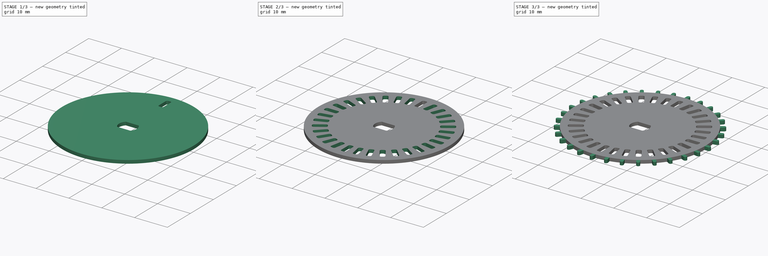
[diagram: build sequence overview — one tinted view per stage of 3, left to right]
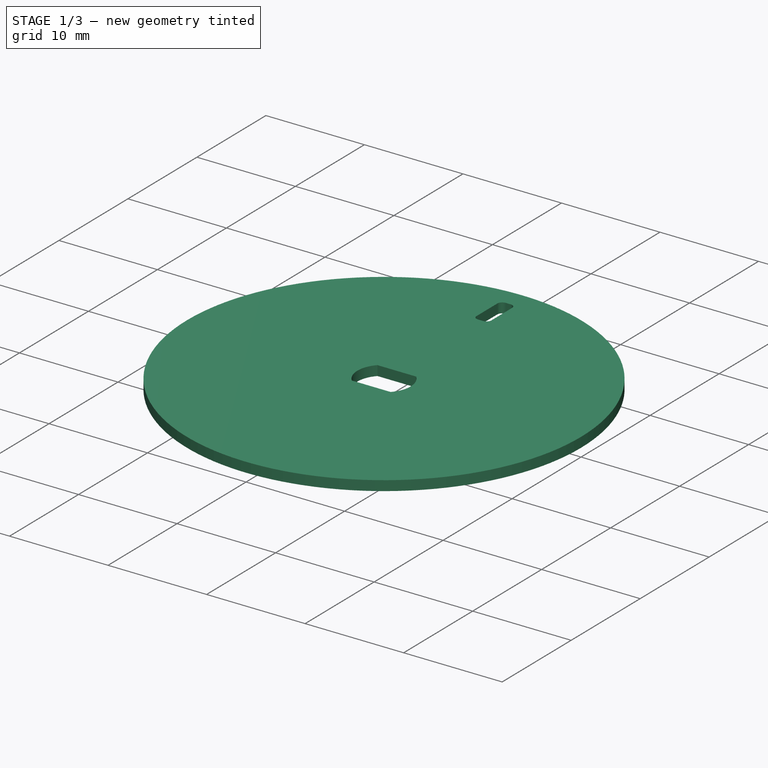
[diagram: stage 1 of 3 — iso view after this stage's code; geometry added in this stage tinted green]
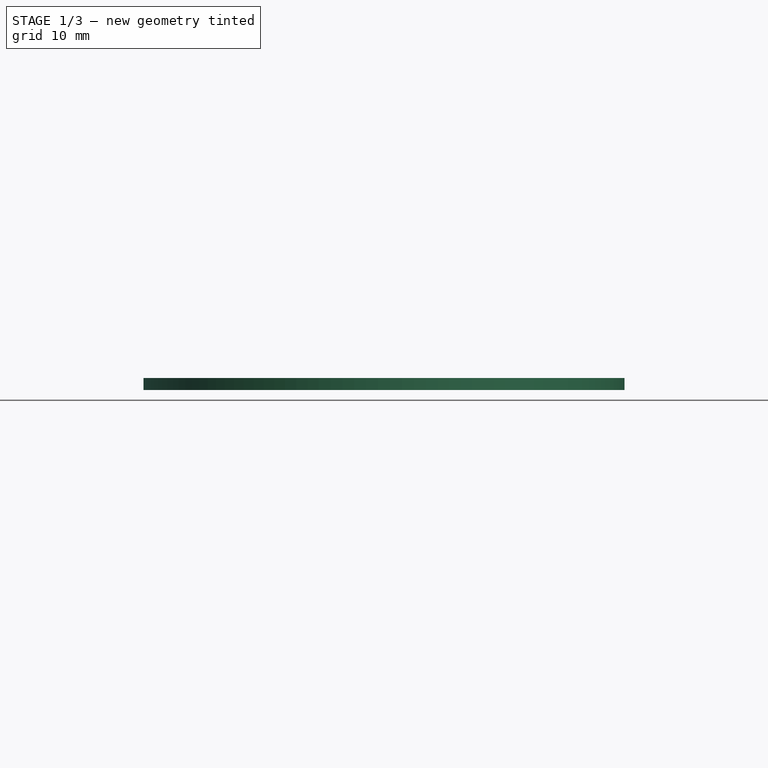
[diagram: stage 1 of 3 — front view after this stage's code; geometry added in this stage tinted green]
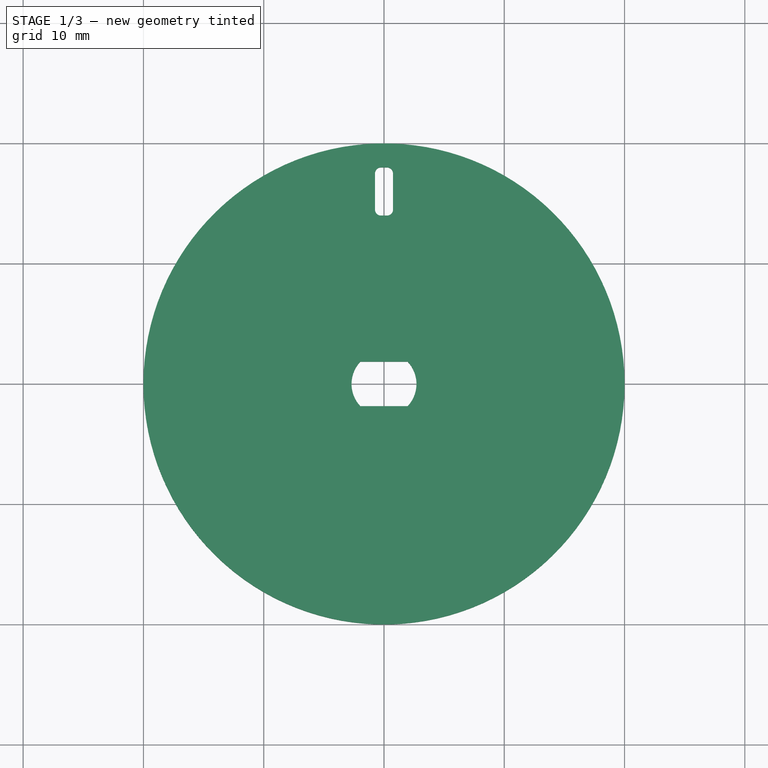
[diagram: stage 1 of 3 — top view after this stage's code; geometry added in this stage tinted green]
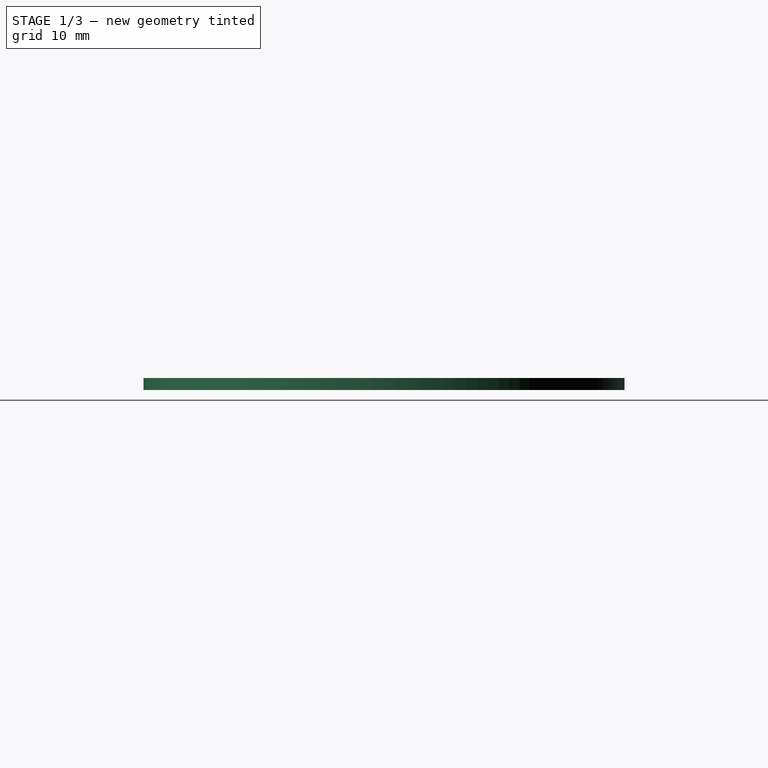
[diagram: stage 1 of 3 — right view after this stage's code; geometry added in this stage tinted green]
FCSTD DOCUMENT  (FreeCAD 0.18.4R)
Label: indexing-wheel-pcb
License: All rights reserved
LicenseURL: http://en.wikipedia.org/wiki/All_rights_reserved
objects: Sketcher::SketchObject×4, PartDesign::Pad×2, PartDesign::PolarPattern×2, PartDesign::Pocket×1, PartDesign::Body×1, Part::Part2DObjectPython×1
note: 14 computed .brp shape members not serialized (recipe doc carries the construction recipe); baked Part::Feature solids carry a one-line shape summary decoded from their .brp

FEATURE [Sketcher::SketchObject] Sketch
  MapMode = 5
  Support = -> [XY_Plane]
  sketch-geometry (5):
    g0: Circle CenterX=0 CenterY=0 CenterZ=0 NormalX=0 NormalY=0 NormalZ=1 AngleXU=0 Radius=20
    g1: LineSegment StartX=-1.9666 StartY=1.85 StartZ=0 EndX=1.9666 EndY=1.85 EndZ=0
    g2: LineSegment StartX=-1.9666 StartY=-1.85 StartZ=0 EndX=1.9666 EndY=-1.85 EndZ=0
    g3: ArcOfCircle CenterX=0 CenterY=0 CenterZ=0 NormalX=0 NormalY=0 NormalZ=1 AngleXU=0 Radius=2.7 StartAngle=2.38673 EndAngle=3.89645
    g4: ArcOfCircle CenterX=0 CenterY=0 CenterZ=0 NormalX=0 NormalY=0 NormalZ=1 AngleXU=0 Radius=2.7 StartAngle=5.52833 EndAngle=7.03804
  constraints (14):
    c: Coincident(g0,g-1)
    c: Diameter(g0) = 40
    c: Horizontal(g1)
    c: Horizontal(g2)
    c: Coincident(g3,g0)
    c: Coincident(g3,g1)
    c: Coincident(g4,g0)
    c: Coincident(g4,g2)
    c: Coincident(g3,g2)
    c: Coincident(g4,g1)
    c: DistanceY(g2,g1) = 3.7
    c: Equal(g1,g2)
    c: Diameter(g4) = 5.4
    c: Diameter(g3) = 5.4
FEATURE [PartDesign::Pad] Pad
  Length = 1
  Length2 = 100
  Profile = -> Sketch
  Type = 0
FEATURE [Sketcher::SketchObject] Sketch001
  MapMode = 5
  Support = -> [XY_Plane]
  sketch-geometry (12):
    g0: LineSegment [constr] StartX=-0.75 StartY=18 StartZ=0 EndX=0.75 EndY=18 EndZ=0
    g1: LineSegment [constr] StartX=0.75 StartY=18 StartZ=0 EndX=0.75 EndY=14 EndZ=0
    g2: LineSegment [constr] StartX=0.75 StartY=14 StartZ=0 EndX=-0.75 EndY=14 EndZ=0
    g3: LineSegment [constr] StartX=-0.75 StartY=14 StartZ=0 EndX=-0.75 EndY=18 EndZ=0
    g4: ArcOfCircle CenterX=-0.25 CenterY=17.5 CenterZ=0 NormalX=0 NormalY=0 NormalZ=1 AngleXU=0 Radius=0.5 StartAngle=1.5708 EndAngle=3.14159
    g5: ArcOfCircle CenterX=0.25 CenterY=17.5 CenterZ=0 NormalX=0 NormalY=0 NormalZ=1 AngleXU=0 Radius=0.5 StartAngle=1.6687e-08 EndAngle=1.5708
    g6: ArcOfCircle CenterX=0.25 CenterY=14.5 CenterZ=0 NormalX=0 NormalY=0 NormalZ=1 AngleXU=0 Radius=0.5 StartAngle=4.71237 EndAngle=6.28319
    g7: ArcOfCircle CenterX=-0.25 CenterY=14.5 CenterZ=0 NormalX=0 NormalY=0 NormalZ=1 AngleXU=0 Radius=0.5 StartAngle=3.14159 EndAngle=4.71239
    g8: LineSegment StartX=-0.25 StartY=14 StartZ=0 EndX=0.249991 EndY=14 EndZ=0
    g9: LineSegment StartX=0.25 StartY=18 StartZ=0 EndX=-0.25 EndY=18 EndZ=0
    g10: LineSegment StartX=-0.75 StartY=17.5 StartZ=0 EndX=-0.75 EndY=14.5 EndZ=0
    g11: LineSegment StartX=0.75 StartY=14.5 StartZ=0 EndX=0.75 EndY=17.5 EndZ=0
  constraints (39):
    c: Coincident(g0,g1)
    c: Coincident(g1,g2)
    c: Coincident(g2,g3)
    c: Coincident(g3,g0)
    c: Horizontal(g2)
    c: Vertical(g1)
    c: Vertical(g3)
    c: DistanceX(g0,g0) = 1.5
    c: DistanceY(g1,g1) = 4
    c: Symmetric(g0,g0,g-2)
    c: DistanceY(g-1,g2) = 14
    c: PointOnObject(g4,g3)
    c: PointOnObject(g5,g0)
    c: PointOnObject(g6,g1)
    c: PointOnObject(g7,g2)
    c: Tangent(g7,g3)
    c: PointOnObject(g7,g3)
    c: Tangent(g7,g2)
    c: Tangent(g4,g3)
    c: Tangent(g4,g0)
    c: Tangent(g5,g0)
    c: Tangent(g5,g1)
    c: Tangent(g6,g2)
    c: Tangent(g6,g1)
    c: PointOnObject(g5,g1)
    c: PointOnObject(g4,g0)
    c: Diameter(g4) = 1
    c: Diameter(g5) = 1
    c: Diameter(g6) = 1
    c: Diameter(g7) = 1
    c: Coincident(g8,g7)
    c: Coincident(g8,g6)
    c: Coincident(g9,g5)
    c: Coincident(g9,g4)
    c: Coincident(g10,g4)
    c: Coincident(g10,g7)
    c: Tangent(g8,g6)
    c: Coincident(g11,g6)
    c: Coincident(g11,g5)
FEATURE [PartDesign::Pocket] Pocket
  BaseFeature = -> Pad
  Length = 5
  Length2 = 100
  Profile = -> Sketch001
  Reversed = true
  Type = 0
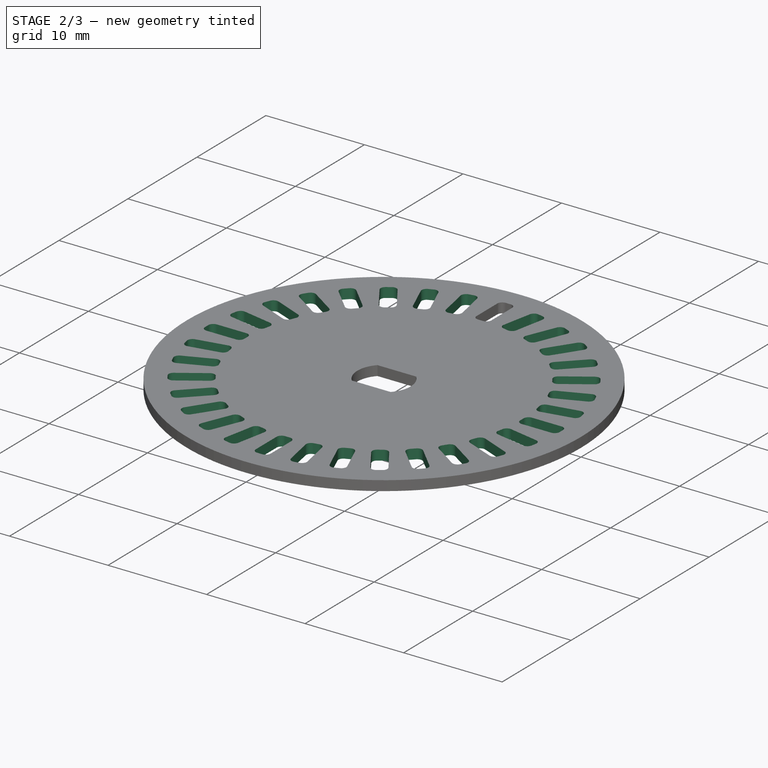
[diagram: stage 2 of 3 — iso view after this stage's code; geometry added in this stage tinted green]
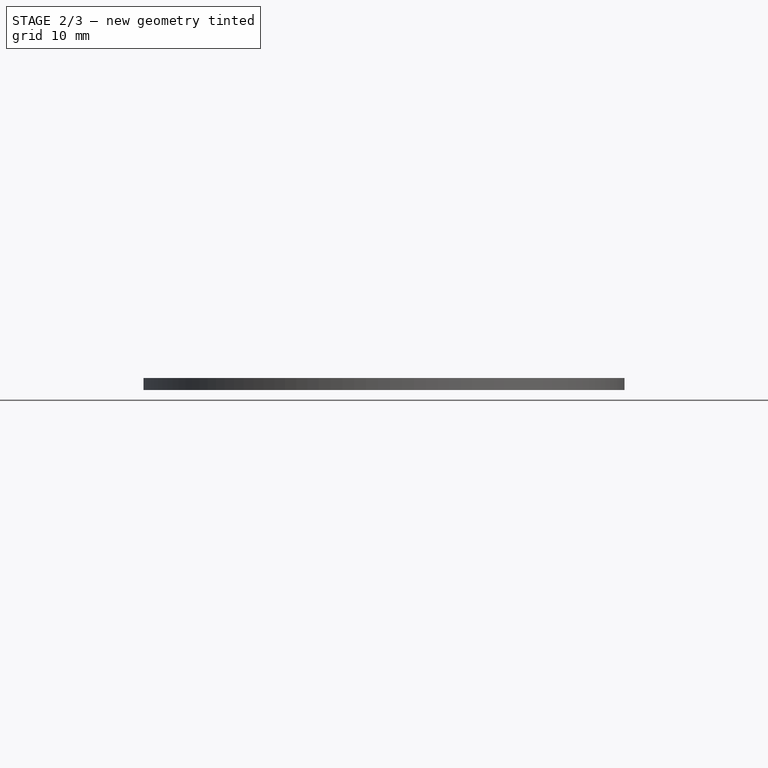
[diagram: stage 2 of 3 — front view after this stage's code; geometry added in this stage tinted green]
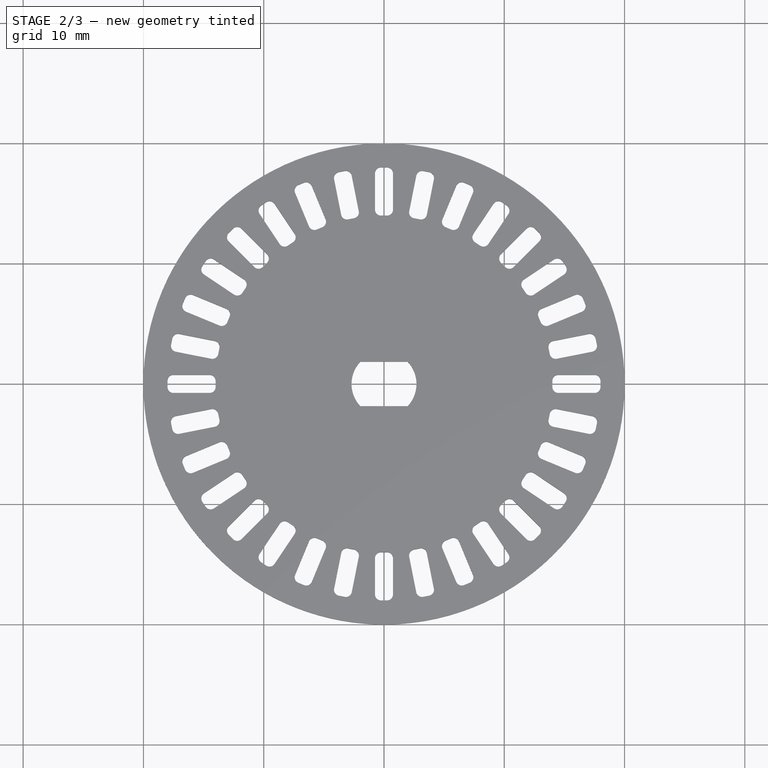
[diagram: stage 2 of 3 — top view after this stage's code; geometry added in this stage tinted green]
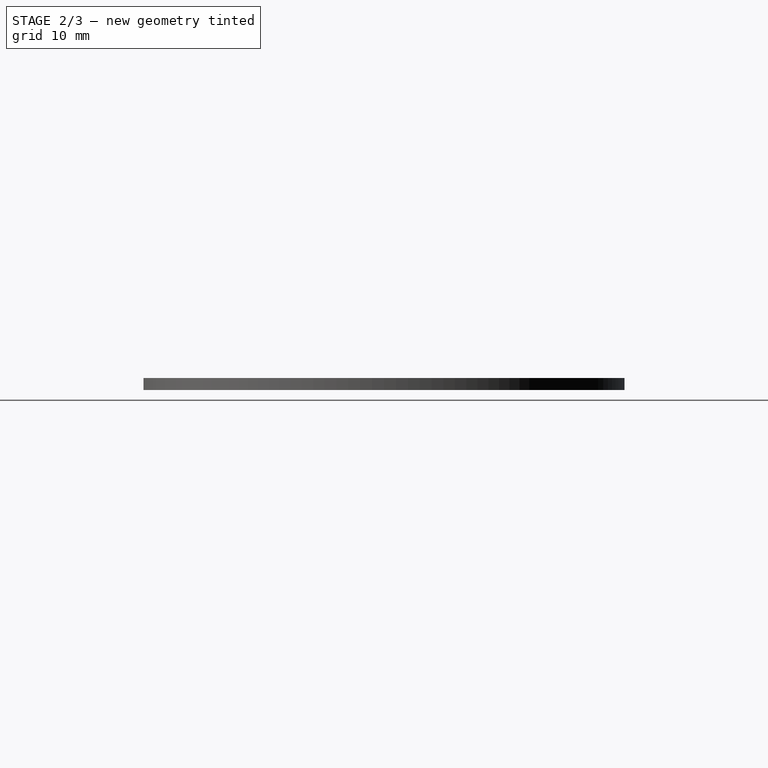
[diagram: stage 2 of 3 — right view after this stage's code; geometry added in this stage tinted green]
FEATURE [PartDesign::PolarPattern] PolarPattern
  Angle = 360
  Axis = -> Sketch001 [N_Axis]
  BaseFeature = -> Pocket
  Occurrences = 32
  Originals = -> [Pocket]
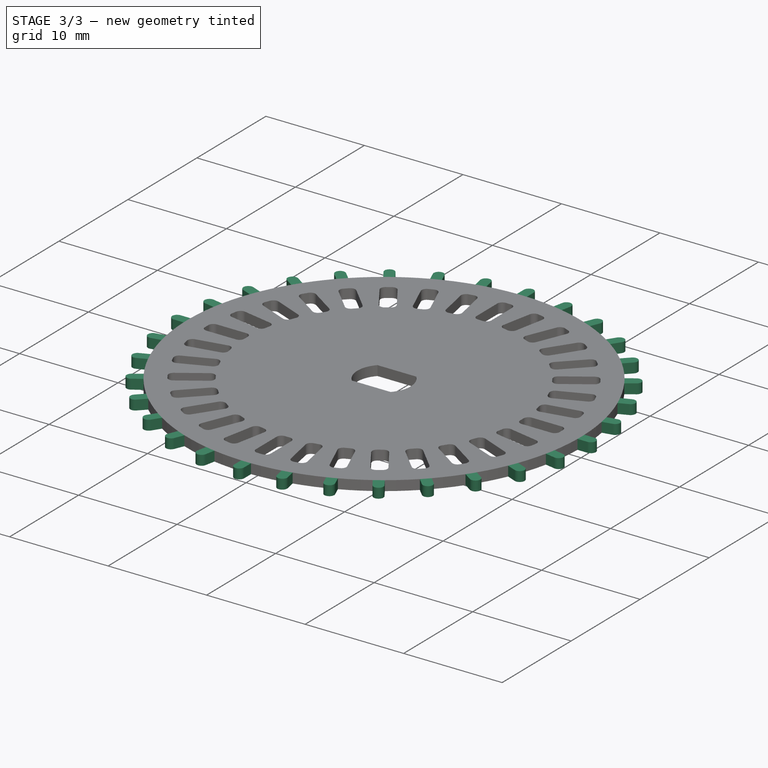
[diagram: stage 3 of 3 — iso view after this stage's code; geometry added in this stage tinted green]
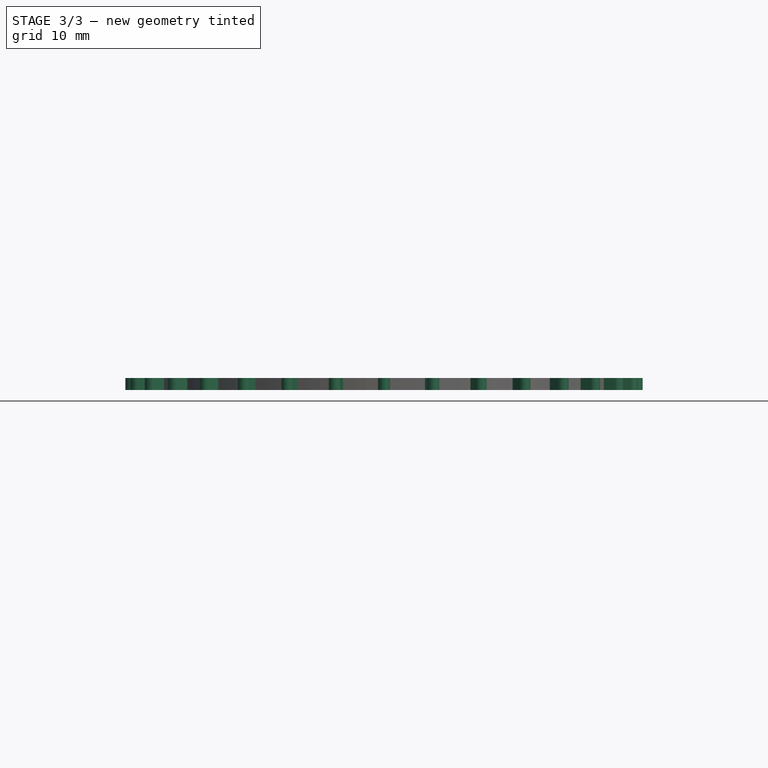
[diagram: stage 3 of 3 — front view after this stage's code; geometry added in this stage tinted green]
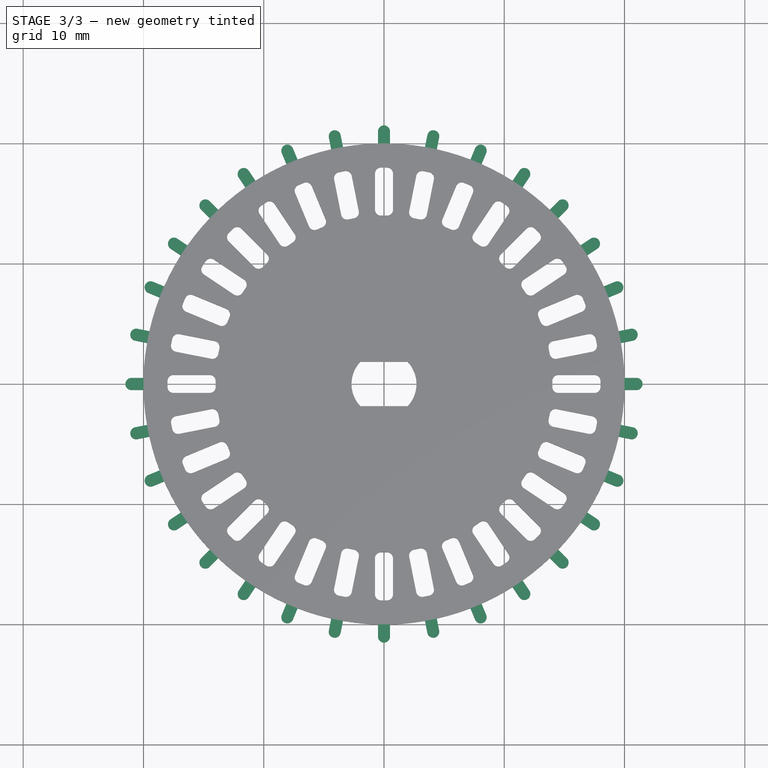
[diagram: stage 3 of 3 — top view after this stage's code; geometry added in this stage tinted green]
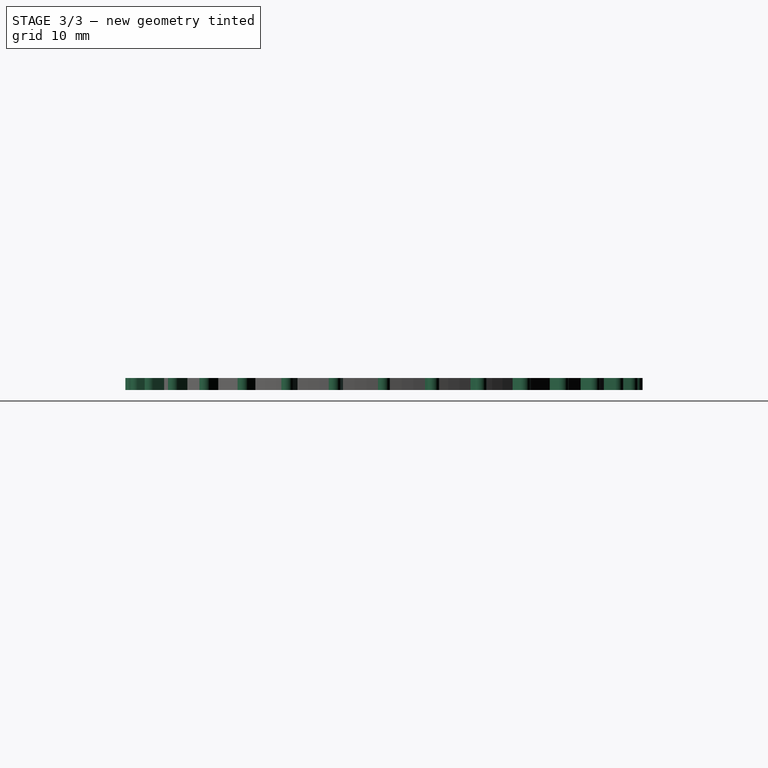
[diagram: stage 3 of 3 — right view after this stage's code; geometry added in this stage tinted green]
FEATURE [Sketcher::SketchObject] Sketch002
  MapMode = 5
  Support = -> [XY_Plane]
  sketch-geometry (4):
    g0: LineSegment StartX=-0.5 StartY=19.9937 StartZ=0 EndX=-0.5 EndY=21 EndZ=0
    g1: LineSegment StartX=0.5 StartY=19.9937 StartZ=0 EndX=0.5 EndY=21 EndZ=0
    g2: ArcOfCircle CenterX=0 CenterY=21 CenterZ=0 NormalX=0 NormalY=0 NormalZ=1 AngleXU=0 Radius=0.5 StartAngle=7.58997e-08 EndAngle=3.14159
    g3: ArcOfCircle CenterX=0 CenterY=0 CenterZ=0 NormalX=0 NormalY=0 NormalZ=1 AngleXU=0 Radius=20 StartAngle=1.54579 EndAngle=1.5958
  constraints (13):
    c: Vertical(g0)
    c: Vertical(g1)
    c: PointOnObject(g2,g-2)
    c: Coincident(g2,g0)
    c: Coincident(g2,g1)
    c: Tangent(g2,g0)
    c: Tangent(g2,g1)
    c: Diameter(g2) = 1
    c: DistanceY(g-1,g2) = 21
    c: Coincident(g3,g-1)
    c: Coincident(g3,g0)
    c: Coincident(g3,g1)
    c: Diameter(g3) = 40
FEATURE [PartDesign::Pad] Pad001
  BaseFeature = -> PolarPattern
  Length = 1
  Length2 = 100
  Profile = -> Sketch002
  Type = 0
FEATURE [PartDesign::PolarPattern] PolarPattern001
  Angle = 360
  Axis = -> Sketch002 [N_Axis]
  BaseFeature = -> Pad001
  Occurrences = 32
  Originals = -> [Pad001]
FEATURE [PartDesign::Body] Body
  Group = -> [Sketch,Pad,Sketch001,Pocket,PolarPattern,Sketch002,Pad001,PolarPattern001]
  Origin = -> Origin
  Tip = -> PolarPattern001
FEATURE [Part::Part2DObjectPython] Shape2DView  # Draft 2D object (typed FeaturePython)
  Base = -> PolarPattern001
  HiddenLines = false
  InPlace = true
  Projection = (0,0,1)
  ProjectionMode = 0
  SegmentLength = 0.05
  Tessellation = false
  VisibleOnly = false
FEATURE [Sketcher::SketchObject] Sketch003
  sketch-geometry (389):
    g0: ArcOfCircle CenterX=0 CenterY=0 CenterZ=0 NormalX=0 NormalY=0 NormalZ=1 AngleXU=0 Radius=20 StartAngle=0.0250026 EndAngle=0.171347
    g1: LineSegment StartX=19.7071 StartY=3.41019 StartZ=0 EndX=20.694 EndY=3.6065 EndZ=0
    g2: ArcOfCircle CenterX=0 CenterY=0 CenterZ=0 NormalX=0 NormalY=0 NormalZ=1 AngleXU=0 Radius=20 StartAngle=0.221352 EndAngle=0.367696
    g3: ArcOfCircle CenterX=0 CenterY=0 CenterZ=0 NormalX=0 NormalY=0 NormalZ=1 AngleXU=0 Radius=20 StartAngle=0.417702 EndAngle=0.564046
    g4: ArcOfCircle CenterX=0 CenterY=0 CenterZ=0 NormalX=0 NormalY=0 NormalZ=1 AngleXU=0 Radius=20 StartAngle=0.614051 EndAngle=0.760396
    g5: ArcOfCircle CenterX=0 CenterY=0 CenterZ=0 NormalX=0 NormalY=0 NormalZ=1 AngleXU=0 Radius=20 StartAngle=0.810401 EndAngle=0.956745
    g6: ArcOfCircle CenterX=0 CenterY=0 CenterZ=0 NormalX=0 NormalY=0 NormalZ=1 AngleXU=0 Radius=20 StartAngle=1.00675 EndAngle=1.15309
    g7: ArcOfCircle CenterX=0 CenterY=0 CenterZ=0 NormalX=0 NormalY=0 NormalZ=1 AngleXU=0 Radius=20 StartAngle=1.2031 EndAngle=1.34944
    g8: ArcOfCircle CenterX=0 CenterY=0 CenterZ=0 NormalX=0 NormalY=0 NormalZ=1 AngleXU=0 Radius=20 StartAngle=1.39945 EndAngle=1.54579
    g9: ArcOfCircle CenterX=0 CenterY=0 CenterZ=0 NormalX=0 NormalY=0 NormalZ=1 AngleXU=0 Radius=20 StartAngle=1.5958 EndAngle=1.74214
    g10: ArcOfCircle CenterX=0 CenterY=0 CenterZ=0 NormalX=0 NormalY=0 NormalZ=1 AngleXU=0 Radius=20 StartAngle=1.79215 EndAngle=1.93849
    g11: ArcOfCircle CenterX=0 CenterY=0 CenterZ=0 NormalX=0 NormalY=0 NormalZ=1 AngleXU=0 Radius=20 StartAngle=1.9885 EndAngle=2.13484
    g12: ArcOfCircle CenterX=0 CenterY=0 CenterZ=0 NormalX=0 NormalY=0 NormalZ=1 AngleXU=0 Radius=20 StartAngle=2.18485 EndAngle=2.33119
    g13: ArcOfCircle CenterX=0 CenterY=0 CenterZ=0 NormalX=0 NormalY=0 NormalZ=1 AngleXU=0 Radius=20 StartAngle=2.3812 EndAngle=2.52754
    g14: ArcOfCircle CenterX=0 CenterY=0 CenterZ=0 NormalX=0 NormalY=0 NormalZ=1 AngleXU=0 Radius=20 StartAngle=2.57755 EndAngle=2.72389
    g15: ArcOfCircle CenterX=0 CenterY=0 CenterZ=0 NormalX=0 NormalY=0 NormalZ=1 AngleXU=0 Radius=20 StartAngle=2.7739 EndAngle=2.92024
    g16: ArcOfCircle CenterX=0 CenterY=0 CenterZ=0 NormalX=0 NormalY=0 NormalZ=1 AngleXU=0 Radius=20 StartAngle=2.97025 EndAngle=3.11659
    g17: ArcOfCircle CenterX=0 CenterY=0 CenterZ=0 NormalX=0 NormalY=0 NormalZ=1 AngleXU=0 Radius=20 StartAngle=3.1666 EndAngle=3.31294
    g18: ArcOfCircle CenterX=0 CenterY=0 CenterZ=0 NormalX=0 NormalY=0 NormalZ=1 AngleXU=0 Radius=20 StartAngle=3.36294 EndAngle=3.50929
    g19: ArcOfCircle CenterX=0 CenterY=0 CenterZ=0 NormalX=0 NormalY=0 NormalZ=1 AngleXU=0 Radius=20 StartAngle=3.55929 EndAngle=3.70564
    g20: ArcOfCircle CenterX=0 CenterY=0 CenterZ=0 NormalX=0 NormalY=0 NormalZ=1 AngleXU=0 Radius=20 StartAngle=3.75564 EndAngle=3.90199
    g21: ArcOfCircle CenterX=0 CenterY=0 CenterZ=0 NormalX=0 NormalY=0 NormalZ=1 AngleXU=0 Radius=20 StartAngle=3.95199 EndAngle=4.09834
    g22: ArcOfCircle CenterX=0 CenterY=0 CenterZ=0 NormalX=0 NormalY=0 NormalZ=1 AngleXU=0 Radius=20 StartAngle=4.14834 EndAngle=4.29469
    g23: ArcOfCircle CenterX=0 CenterY=0 CenterZ=0 NormalX=0 NormalY=0 NormalZ=1 AngleXU=0 Radius=20 StartAngle=4.34469 EndAngle=4.49104
    g24: ArcOfCircle CenterX=0 CenterY=0 CenterZ=0 NormalX=0 NormalY=0 NormalZ=1 AngleXU=2.94524 Radius=20 StartAngle=1.54579 EndAngle=1.5958
    g25: ArcOfCircle CenterX=0 CenterY=0 CenterZ=0 NormalX=0 NormalY=0 NormalZ=1 AngleXU=0 Radius=20 StartAngle=4.54104 EndAngle=4.68739
    g26: ArcOfCircle CenterX=0 CenterY=0 CenterZ=0 NormalX=0 NormalY=0 NormalZ=1 AngleXU=0 Radius=20 StartAngle=4.73739 EndAngle=4.88374
    g27: ArcOfCircle CenterX=0 CenterY=0 CenterZ=0 NormalX=0 NormalY=0 NormalZ=1 AngleXU=0 Radius=20 StartAngle=4.93374 EndAngle=5.08009
    g28: ArcOfCircle CenterX=0 CenterY=0 CenterZ=0 NormalX=0 NormalY=0 NormalZ=1 AngleXU=0 Radius=20 StartAngle=5.13009 EndAngle=5.27643
    g29: ArcOfCircle CenterX=0 CenterY=0 CenterZ=0 NormalX=0 NormalY=0 NormalZ=1 AngleXU=0 Radius=20 StartAngle=5.32644 EndAngle=5.47278
    g30: ArcOfCircle CenterX=0 CenterY=0 CenterZ=0 NormalX=0 NormalY=0 NormalZ=1 AngleXU=0 Radius=20 StartAngle=5.52279 EndAngle=5.66913
    g31: ArcOfCircle CenterX=0 CenterY=0 CenterZ=0 NormalX=0 NormalY=0 NormalZ=1 AngleXU=0 Radius=20 StartAngle=5.71914 EndAngle=5.86548
    g32: ArcOfCircle CenterX=0 CenterY=0 CenterZ=0 NormalX=0 NormalY=0 NormalZ=1 AngleXU=0 Radius=20 StartAngle=5.91549 EndAngle=6.06183
    g33: ArcOfCircle CenterX=0 CenterY=0 CenterZ=0 NormalX=0 NormalY=0 NormalZ=1 AngleXU=0 Radius=20 StartAngle=6.11184 EndAngle=6.25818
    g34: LineSegment StartX=14.5 StartY=0.75 StartZ=0 EndX=17.5 EndY=0.75 EndZ=0
    g35: ArcOfCircle CenterX=14.5 CenterY=0.25 CenterZ=0 NormalX=0 NormalY=0 NormalZ=1 AngleXU=-1.5708 Radius=0.5 StartAngle=3.14159 EndAngle=4.71239
    g36: ArcOfCircle CenterX=17.5 CenterY=0.25 CenterZ=0 NormalX=0 NormalY=0 NormalZ=1 AngleXU=-1.5708 Radius=0.5 StartAngle=1.5708 EndAngle=3.14159
    g37: LineSegment StartX=14 StartY=-0.249991 StartZ=0 EndX=14 EndY=0.25 EndZ=0
    g38: LineSegment StartX=18 StartY=0.25 StartZ=0 EndX=18 EndY=-0.25 EndZ=0
    g39: ArcOfCircle CenterX=14.5 CenterY=-0.25 CenterZ=0 NormalX=0 NormalY=0 NormalZ=1 AngleXU=-1.5708 Radius=0.5 StartAngle=4.71237 EndAngle=6.28319
    g40: ArcOfCircle CenterX=17.5 CenterY=-0.25 CenterZ=0 NormalX=0 NormalY=0 NormalZ=1 AngleXU=-1.5708 Radius=0.5 StartAngle=1.6687e-08 EndAngle=1.5708
    g41: LineSegment StartX=17.5 StartY=-0.75 StartZ=0 EndX=14.5 EndY=-0.75 EndZ=0
    g42: LineSegment StartX=14.0751 StartY=3.5644 StartZ=0 EndX=17.0174 EndY=4.14967 EndZ=0
    g43: ArcOfCircle CenterX=14.1726 CenterY=3.07401 CenterZ=0 NormalX=0 NormalY=0 NormalZ=1 AngleXU=-1.37445 Radius=0.5 StartAngle=3.14159 EndAngle=4.71239
    g44: ArcOfCircle CenterX=17.115 CenterY=3.65928 CenterZ=0 NormalX=0 NormalY=0 NormalZ=1 AngleXU=-1.37445 Radius=0.5 StartAngle=1.5708 EndAngle=3.14159
    g45: LineSegment StartX=13.7798 StartY=2.48608 StartZ=0 EndX=13.6822 EndY=2.97646 EndZ=0
    g46: LineSegment StartX=17.6054 StartY=3.75682 StartZ=0 EndX=17.7029 EndY=3.26643 EndZ=0
    g47: ArcOfCircle CenterX=14.2702 CenterY=2.58361 CenterZ=0 NormalX=0 NormalY=0 NormalZ=1 AngleXU=-1.37445 Radius=0.5 StartAngle=4.71237 EndAngle=6.28319
    g48: ArcOfCircle CenterX=17.2125 CenterY=3.16888 CenterZ=0 NormalX=0 NormalY=0 NormalZ=1 AngleXU=-1.37445 Radius=0.5 StartAngle=1.6687e-08 EndAngle=1.5708
    g49: LineSegment StartX=17.3101 StartY=2.67849 StartZ=0 EndX=14.3677 EndY=2.09322 EndZ=0
    g50: LineSegment StartX=13.1092 StartY=6.24182 StartZ=0 EndX=15.8809 EndY=7.38987 EndZ=0
    g51: ArcOfCircle CenterX=13.3006 CenterY=5.77988 CenterZ=0 NormalX=0 NormalY=0 NormalZ=1 AngleXU=-1.1781 Radius=0.5 StartAngle=3.14159 EndAngle=4.71239
    g52: ArcOfCircle CenterX=16.0722 CenterY=6.92793 CenterZ=0 NormalX=0 NormalY=0 NormalZ=1 AngleXU=-1.1781 Radius=0.5 StartAngle=1.5708 EndAngle=3.14159
    g53: LineSegment StartX=13.03 StartY=5.12661 StartZ=0 EndX=12.8386 EndY=5.58854 EndZ=0
    g54: LineSegment StartX=16.5342 StartY=7.11927 StartZ=0 EndX=16.7255 EndY=6.65733 EndZ=0
    g55: ArcOfCircle CenterX=13.4919 CenterY=5.31794 CenterZ=0 NormalX=0 NormalY=0 NormalZ=1 AngleXU=-1.1781 Radius=0.5 StartAngle=4.71237 EndAngle=6.28319
    g56: ArcOfCircle CenterX=16.2636 CenterY=6.46599 CenterZ=0 NormalX=0 NormalY=0 NormalZ=1 AngleXU=-1.1781 Radius=0.5 StartAngle=1.6687e-08 EndAngle=1.5708
    g57: LineSegment StartX=16.4549 StartY=6.00405 StartZ=0 EndX=13.6833 EndY=4.856 EndZ=0
    g58: LineSegment StartX=11.6396 StartY=8.67937 StartZ=0 EndX=14.134 EndY=10.3461 EndZ=0
    g59: ArcOfCircle CenterX=11.9174 CenterY=8.26364 CenterZ=0 NormalX=0 NormalY=0 NormalZ=1 AngleXU=-0.981748 Radius=0.5 StartAngle=3.14159 EndAngle=4.71239
    g60: ArcOfCircle CenterX=14.4118 CenterY=9.93035 CenterZ=0 NormalX=0 NormalY=0 NormalZ=1 AngleXU=-0.981748 Radius=0.5 StartAngle=1.5708 EndAngle=3.14159
    g61: LineSegment StartX=11.7795 StartY=7.57012 StartZ=0 EndX=11.5017 EndY=7.98585 EndZ=0
    g62: LineSegment StartX=14.8276 StartY=10.2081 StartZ=0 EndX=15.1053 EndY=9.7924 EndZ=0
    g63: ArcOfCircle CenterX=12.1952 CenterY=7.8479 CenterZ=0 NormalX=0 NormalY=0 NormalZ=1 AngleXU=-0.981748 Radius=0.5 StartAngle=4.71237 EndAngle=6.28319
    g64: ArcOfCircle CenterX=14.6896 CenterY=9.51461 CenterZ=0 NormalX=0 NormalY=0 NormalZ=1 AngleXU=-0.981748 Radius=0.5 StartAngle=1.6687e-08 EndAngle=1.5708
    g65: LineSegment StartX=14.9674 StartY=9.09888 StartZ=0 EndX=12.473 EndY=7.43217 EndZ=0
    g66: LineSegment StartX=4.856 StartY=13.6833 StartZ=0 EndX=6.00405 EndY=16.4549 EndZ=0
    g67: ArcOfCircle CenterX=5.31794 CenterY=13.4919 CenterZ=0 NormalX=0 NormalY=0 NormalZ=1 AngleXU=-0.392699 Radius=0.5 StartAngle=3.14159 EndAngle=4.71239
    g68: ArcOfCircle CenterX=6.46599 CenterY=16.2636 CenterZ=0 NormalX=0 NormalY=0 NormalZ=1 AngleXU=-0.392699 Radius=0.5 StartAngle=1.5708 EndAngle=3.14159
    g69: LineSegment StartX=5.58853 StartY=12.8386 StartZ=0 EndX=5.1266 EndY=13.03 EndZ=0
    g70: LineSegment StartX=6.65733 StartY=16.7255 StartZ=0 EndX=7.11927 EndY=16.5342 EndZ=0
    g71: ArcOfCircle CenterX=5.77988 CenterY=13.3006 CenterZ=0 NormalX=0 NormalY=0 NormalZ=1 AngleXU=-0.392699 Radius=0.5 StartAngle=4.71237 EndAngle=6.28319
    g72: ArcOfCircle CenterX=6.92793 CenterY=16.0722 CenterZ=0 NormalX=0 NormalY=0 NormalZ=1 AngleXU=-0.392699 Radius=0.5 StartAngle=1.6687e-08 EndAngle=1.5708
    g73: LineSegment StartX=7.38987 StartY=15.8809 StartZ=0 EndX=6.24182 EndY=13.1092 EndZ=0
    g74: LineSegment StartX=7.43217 StartY=12.473 StartZ=0 EndX=9.09888 EndY=14.9674 EndZ=0
    g75: ArcOfCircle CenterX=7.8479 CenterY=12.1952 CenterZ=0 NormalX=0 NormalY=0 NormalZ=1 AngleXU=-0.589049 Radius=0.5 StartAngle=3.14159 EndAngle=4.71239
    g76: ArcOfCircle CenterX=9.51461 CenterY=14.6896 CenterZ=0 NormalX=0 NormalY=0 NormalZ=1 AngleXU=-0.589049 Radius=0.5 StartAngle=1.5708 EndAngle=3.14159
    g77: LineSegment StartX=7.98584 StartY=11.5017 StartZ=0 EndX=7.57012 EndY=11.7795 EndZ=0
    g78: LineSegment StartX=9.7924 StartY=15.1053 StartZ=0 EndX=10.2081 EndY=14.8276 EndZ=0
    g79: ArcOfCircle CenterX=8.26364 CenterY=11.9174 CenterZ=0 NormalX=0 NormalY=0 NormalZ=1 AngleXU=-0.589049 Radius=0.5 StartAngle=4.71237 EndAngle=6.28319
    g80: ArcOfCircle CenterX=9.93035 CenterY=14.4118 CenterZ=0 NormalX=0 NormalY=0 NormalZ=1 AngleXU=-0.589049 Radius=0.5 StartAngle=1.6687e-08 EndAngle=1.5708
    g81: LineSegment StartX=10.3461 StartY=14.134 StartZ=0 EndX=8.67937 EndY=11.6396 EndZ=0
    g82: LineSegment StartX=9.72272 StartY=10.7834 StartZ=0 EndX=11.844 EndY=12.9047 EndZ=0
    g83: ArcOfCircle CenterX=10.0763 CenterY=10.4298 CenterZ=0 NormalX=0 NormalY=0 NormalZ=1 AngleXU=-0.785398 Radius=0.5 StartAngle=3.14159 EndAngle=4.71239
    g84: ArcOfCircle CenterX=12.1976 CenterY=12.5511 CenterZ=0 NormalX=0 NormalY=0 NormalZ=1 AngleXU=-0.785398 Radius=0.5 StartAngle=1.5708 EndAngle=3.14159
    g85: LineSegment StartX=10.0763 StartY=9.72272 StartZ=0 EndX=9.72272 EndY=10.0763 EndZ=0
    g86: LineSegment StartX=12.5511 StartY=12.9047 StartZ=0 EndX=12.9047 EndY=12.5511 EndZ=0
    g87: ArcOfCircle CenterX=10.4298 CenterY=10.0763 CenterZ=0 NormalX=0 NormalY=0 NormalZ=1 AngleXU=-0.785398 Radius=0.5 StartAngle=4.71237 EndAngle=6.28319
    g88: ArcOfCircle CenterX=12.5511 CenterY=12.1976 CenterZ=0 NormalX=0 NormalY=0 NormalZ=1 AngleXU=-0.785398 Radius=0.5 StartAngle=1.6687e-08 EndAngle=1.5708
    g89: LineSegment StartX=12.9047 StartY=11.844 StartZ=0 EndX=10.7834 EndY=9.72272 EndZ=0
    g90: LineSegment StartX=-6.24182 StartY=13.1092 StartZ=0 EndX=-7.38987 EndY=15.8809 EndZ=0
    g91: ArcOfCircle CenterX=-5.77988 CenterY=13.3006 CenterZ=0 NormalX=0 NormalY=0 NormalZ=1 AngleXU=0.392699 Radius=0.5 StartAngle=3.14159 EndAngle=4.71239
    g92: ArcOfCircle CenterX=-6.92793 CenterY=16.0722 CenterZ=0 NormalX=0 NormalY=0 NormalZ=1 AngleXU=0.392699 Radius=0.5 StartAngle=1.5708 EndAngle=3.14159
    g93: LineSegment StartX=-5.12661 StartY=13.03 StartZ=0 EndX=-5.58854 EndY=12.8386 EndZ=0
    g94: LineSegment StartX=-7.11927 StartY=16.5342 StartZ=0 EndX=-6.65733 EndY=16.7255 EndZ=0
    g95: ArcOfCircle CenterX=-5.31794 CenterY=13.4919 CenterZ=0 NormalX=0 NormalY=0 NormalZ=1 AngleXU=0.392699 Radius=0.5 StartAngle=4.71237 EndAngle=6.28319
    g96: ArcOfCircle CenterX=-6.46599 CenterY=16.2636 CenterZ=0 NormalX=0 NormalY=0 NormalZ=1 AngleXU=0.392699 Radius=0.5 StartAngle=1.6687e-08 EndAngle=1.5708
    g97: LineSegment StartX=-6.00405 StartY=16.4549 StartZ=0 EndX=-4.856 EndY=13.6833 EndZ=0
    g98: LineSegment StartX=-8.67937 StartY=11.6396 StartZ=0 EndX=-10.3461 EndY=14.134 EndZ=0
    g99: ArcOfCircle CenterX=-8.26364 CenterY=11.9174 CenterZ=0 NormalX=0 NormalY=0 NormalZ=1 AngleXU=0.589049 Radius=0.5 StartAngle=3.14159 EndAngle=4.71239
    g100: ArcOfCircle CenterX=-9.93035 CenterY=14.4118 CenterZ=0 NormalX=0 NormalY=0 NormalZ=1 AngleXU=0.589049 Radius=0.5 StartAngle=1.5708 EndAngle=3.14159
    g101: LineSegment StartX=-7.57012 StartY=11.7795 StartZ=0 EndX=-7.98585 EndY=11.5017 EndZ=0
    g102: LineSegment StartX=-10.2081 StartY=14.8276 StartZ=0 EndX=-9.7924 EndY=15.1053 EndZ=0
    g103: ArcOfCircle CenterX=-7.8479 CenterY=12.1952 CenterZ=0 NormalX=0 NormalY=0 NormalZ=1 AngleXU=0.589049 Radius=0.5 StartAngle=4.71237 EndAngle=6.28319
    g104: ArcOfCircle CenterX=-9.51461 CenterY=14.6896 CenterZ=0 NormalX=0 NormalY=0 NormalZ=1 AngleXU=0.589049 Radius=0.5 StartAngle=1.6687e-08 EndAngle=1.5708
    g105: LineSegment StartX=-9.09888 StartY=14.9674 StartZ=0 EndX=-7.43217 EndY=12.473 EndZ=0
    g106: LineSegment StartX=-10.7834 StartY=9.72272 StartZ=0 EndX=-12.9047 EndY=11.844 EndZ=0
    g107: ArcOfCircle CenterX=-10.4298 CenterY=10.0763 CenterZ=0 NormalX=0 NormalY=0 NormalZ=1 AngleXU=0.785398 Radius=0.5 StartAngle=3.14159 EndAngle=4.71239
    g108: ArcOfCircle CenterX=-12.5511 CenterY=12.1976 CenterZ=0 NormalX=0 NormalY=0 NormalZ=1 AngleXU=0.785398 Radius=0.5 StartAngle=1.5708 EndAngle=3.14159
    g109: LineSegment StartX=-9.72272 StartY=10.0763 StartZ=0 EndX=-10.0763 EndY=9.72272 EndZ=0
    g110: LineSegment StartX=-12.9047 StartY=12.5511 StartZ=0 EndX=-12.5511 EndY=12.9047 EndZ=0
    g111: ArcOfCircle CenterX=-10.0763 CenterY=10.4298 CenterZ=0 NormalX=0 NormalY=0 NormalZ=1 AngleXU=0.785398 Radius=0.5 StartAngle=4.71237 EndAngle=6.28319
    g112: ArcOfCircle CenterX=-12.1976 CenterY=12.5511 CenterZ=0 NormalX=0 NormalY=0 NormalZ=1 AngleXU=0.785398 Radius=0.5 StartAngle=1.6687e-08 EndAngle=1.5708
    g113: LineSegment StartX=-11.844 StartY=12.9047 StartZ=0 EndX=-9.72272 EndY=10.7834 EndZ=0
    g114: LineSegment StartX=-0.75 StartY=14.5 StartZ=0 EndX=-0.75 EndY=17.5 EndZ=0
    g115: ArcOfCircle CenterX=-0.25 CenterY=14.5 CenterZ=0 NormalX=0 NormalY=0 NormalZ=1 AngleXU=0 Radius=0.5 StartAngle=3.14159 EndAngle=4.71239
    g116: ArcOfCircle CenterX=-0.25 CenterY=17.5 CenterZ=0 NormalX=0 NormalY=0 NormalZ=1 AngleXU=0 Radius=0.5 StartAngle=1.5708 EndAngle=3.14159
    g117: LineSegment StartX=0.249991 StartY=14 StartZ=0 EndX=-0.25 EndY=14 EndZ=0
    g118: LineSegment StartX=-0.25 StartY=18 StartZ=0 EndX=0.25 EndY=18 EndZ=0
    g119: ArcOfCircle CenterX=0.25 CenterY=14.5 CenterZ=0 NormalX=0 NormalY=0 NormalZ=1 AngleXU=0 Radius=0.5 StartAngle=4.71237 EndAngle=6.28319
    g120: ArcOfCircle CenterX=0.25 CenterY=17.5 CenterZ=0 NormalX=0 NormalY=0 NormalZ=1 AngleXU=0 Radius=0.5 StartAngle=1.6687e-08 EndAngle=1.5708
    g121: LineSegment StartX=0.75 StartY=17.5 StartZ=0 EndX=0.75 EndY=14.5 EndZ=0
    g122: LineSegment StartX=-3.5644 StartY=14.0751 StartZ=0 EndX=-4.14967 EndY=17.0174 EndZ=0
    g123: ArcOfCircle CenterX=-3.07401 CenterY=14.1726 CenterZ=0 NormalX=0 NormalY=0 NormalZ=1 AngleXU=0.19635 Radius=0.5 StartAngle=3.14159 EndAngle=4.71239
    g124: ArcOfCircle CenterX=-3.65928 CenterY=17.115 CenterZ=0 NormalX=0 NormalY=0 NormalZ=1 AngleXU=0.19635 Radius=0.5 StartAngle=1.5708 EndAngle=3.14159
    g125: LineSegment StartX=-2.48608 StartY=13.7798 StartZ=0 EndX=-2.97646 EndY=13.6822 EndZ=0
    g126: LineSegment StartX=-3.75682 StartY=17.6054 StartZ=0 EndX=-3.26643 EndY=17.7029 EndZ=0
    g127: ArcOfCircle CenterX=-2.58361 CenterY=14.2702 CenterZ=0 NormalX=0 NormalY=0 NormalZ=1 AngleXU=0.19635 Radius=0.5 StartAngle=4.71237 EndAngle=6.28319
    g128: ArcOfCircle CenterX=-3.16888 CenterY=17.2125 CenterZ=0 NormalX=0 NormalY=0 NormalZ=1 AngleXU=0.19635 Radius=0.5 StartAngle=1.6687e-08 EndAngle=1.5708
    g129: LineSegment StartX=-2.67849 StartY=17.3101 StartZ=0 EndX=-2.09322 EndY=14.3677 EndZ=0
    g130: LineSegment StartX=2.09322 StartY=14.3677 StartZ=0 EndX=2.67849 EndY=17.3101 EndZ=0
    g131: ArcOfCircle CenterX=2.58361 CenterY=14.2702 CenterZ=0 NormalX=0 NormalY=0 NormalZ=1 AngleXU=-0.19635 Radius=0.5 StartAngle=3.14159 EndAngle=4.71239
    g132: LineSegment StartX=2.97645 StartY=13.6822 StartZ=0 EndX=2.48607 EndY=13.7798 EndZ=0
    g133: ArcOfCircle CenterX=3.07401 CenterY=14.1726 CenterZ=0 NormalX=0 NormalY=0 NormalZ=1 AngleXU=-0.19635 Radius=0.5 StartAngle=4.71237 EndAngle=6.28319
    g134: LineSegment StartX=4.14967 StartY=17.0174 StartZ=0 EndX=3.5644 EndY=14.0751 EndZ=0
    g135: ArcOfCircle CenterX=3.65928 CenterY=17.115 CenterZ=0 NormalX=0 NormalY=0 NormalZ=1 AngleXU=-0.19635 Radius=0.5 StartAngle=1.6687e-08 EndAngle=1.5708
    g136: LineSegment StartX=3.26643 StartY=17.7029 StartZ=0 EndX=3.75682 EndY=17.6054 EndZ=0
    g137: ArcOfCircle CenterX=3.16888 CenterY=17.2125 CenterZ=0 NormalX=0 NormalY=0 NormalZ=1 AngleXU=-0.19635 Radius=0.5 StartAngle=1.5708 EndAngle=3.14159
    g138: ArcOfCircle CenterX=0 CenterY=0 CenterZ=0 NormalX=0 NormalY=0 NormalZ=1 AngleXU=0 Radius=2.7 StartAngle=2.38673 EndAngle=3.89645
    g139: LineSegment StartX=-1.9666 StartY=1.85 StartZ=0 EndX=1.9666 EndY=1.85 EndZ=0
    g140: LineSegment StartX=-1.9666 StartY=-1.85 StartZ=0 EndX=1.9666 EndY=-1.85 EndZ=0
    g141: ArcOfCircle CenterX=0 CenterY=0 CenterZ=0 NormalX=0 NormalY=0 NormalZ=1 AngleXU=0 Radius=2.7 StartAngle=5.52833 EndAngle=7.03804
    g142: LineSegment StartX=0.75 StartY=-14.5 StartZ=0 EndX=0.75 EndY=-17.5 EndZ=0
    g143: ArcOfCircle CenterX=0.25 CenterY=-14.5 CenterZ=0 NormalX=0 NormalY=0 NormalZ=1 AngleXU=3.14159 Radius=0.5 StartAngle=3.14159 EndAngle=4.71239
    g144: ArcOfCircle CenterX=0.25 CenterY=-17.5 CenterZ=0 NormalX=0 NormalY=0 NormalZ=1 AngleXU=3.14159 Radius=0.5 StartAngle=1.5708 EndAngle=3.14159
    g145: LineSegment StartX=-0.249991 StartY=-14 StartZ=0 EndX=0.25 EndY=-14 EndZ=0
    g146: LineSegment StartX=0.25 StartY=-18 StartZ=0 EndX=-0.25 EndY=-18 EndZ=0
    g147: ArcOfCircle CenterX=-0.25 CenterY=-14.5 CenterZ=0 NormalX=0 NormalY=0 NormalZ=1 AngleXU=3.14159 Radius=0.5 StartAngle=4.71237 EndAngle=6.28319
    g148: ArcOfCircle CenterX=-0.25 CenterY=-17.5 CenterZ=0 NormalX=0 NormalY=0 NormalZ=1 AngleXU=3.14159 Radius=0.5 StartAngle=1.6687e-08 EndAngle=1.5708
    g149: LineSegment StartX=-0.75 StartY=-17.5 StartZ=0 EndX=-0.75 EndY=-14.5 EndZ=0
    g150: LineSegment StartX=3.5644 StartY=-14.0751 StartZ=0 EndX=4.14967 EndY=-17.0174 EndZ=0
    g151: ArcOfCircle CenterX=3.07401 CenterY=-14.1726 CenterZ=0 NormalX=0 NormalY=0 NormalZ=1 AngleXU=-2.94524 Radius=0.5 StartAngle=3.14159 EndAngle=4.71239
    g152: ArcOfCircle CenterX=3.65928 CenterY=-17.115 CenterZ=0 NormalX=0 NormalY=0 NormalZ=1 AngleXU=-2.94524 Radius=0.5 StartAngle=1.5708 EndAngle=3.14159
    g153: LineSegment StartX=2.48608 StartY=-13.7798 StartZ=0 EndX=2.97646 EndY=-13.6822 EndZ=0
    g154: LineSegment StartX=3.75682 StartY=-17.6054 StartZ=0 EndX=3.26643 EndY=-17.7029 EndZ=0
    g155: ArcOfCircle CenterX=2.58361 CenterY=-14.2702 CenterZ=0 NormalX=0 NormalY=0 NormalZ=1 AngleXU=-2.94524 Radius=0.5 StartAngle=4.71237 EndAngle=6.28319
    g156: ArcOfCircle CenterX=3.16888 CenterY=-17.2125 CenterZ=0 NormalX=0 NormalY=0 NormalZ=1 AngleXU=-2.94524 Radius=0.5 StartAngle=1.6687e-08 EndAngle=1.5708
    g157: LineSegment StartX=2.67849 StartY=-17.3101 StartZ=0 EndX=2.09322 EndY=-14.3677 EndZ=0
    g158: LineSegment StartX=6.24182 StartY=-13.1092 StartZ=0 EndX=7.38987 EndY=-15.8809 EndZ=0
    g159: ArcOfCircle CenterX=5.77988 CenterY=-13.3006 CenterZ=0 NormalX=0 NormalY=0 NormalZ=1 AngleXU=-2.74889 Radius=0.5 StartAngle=3.14159 EndAngle=4.71239
    g160: ArcOfCircle CenterX=6.92793 CenterY=-16.0722 CenterZ=0 NormalX=0 NormalY=0 NormalZ=1 AngleXU=-2.74889 Radius=0.5 StartAngle=1.5708 EndAngle=3.14159
    g161: LineSegment StartX=5.12661 StartY=-13.03 StartZ=0 EndX=5.58854 EndY=-12.8386 EndZ=0
    g162: LineSegment StartX=7.11927 StartY=-16.5342 StartZ=0 EndX=6.65733 EndY=-16.7255 EndZ=0
    g163: ArcOfCircle CenterX=5.31794 CenterY=-13.4919 CenterZ=0 NormalX=0 NormalY=0 NormalZ=1 AngleXU=-2.74889 Radius=0.5 StartAngle=4.71237 EndAngle=6.28319
    g164: ArcOfCircle CenterX=6.46599 CenterY=-16.2636 CenterZ=0 NormalX=0 NormalY=0 NormalZ=1 AngleXU=-2.74889 Radius=0.5 StartAngle=1.6687e-08 EndAngle=1.5708
    g165: LineSegment StartX=6.00405 StartY=-16.4549 StartZ=0 EndX=4.856 EndY=-13.6833 EndZ=0
    g166: LineSegment StartX=8.67937 StartY=-11.6396 StartZ=0 EndX=10.3461 EndY=-14.134 EndZ=0
    g167: ArcOfCircle CenterX=8.26364 CenterY=-11.9174 CenterZ=0 NormalX=0 NormalY=0 NormalZ=1 AngleXU=-2.55254 Radius=0.5 StartAngle=3.14159 EndAngle=4.71239
    g168: ArcOfCircle CenterX=9.93035 CenterY=-14.4118 CenterZ=0 NormalX=0 NormalY=0 NormalZ=1 AngleXU=-2.55254 Radius=0.5 StartAngle=1.5708 EndAngle=3.14159
    g169: LineSegment StartX=7.57012 StartY=-11.7795 StartZ=0 EndX=7.98585 EndY=-11.5017 EndZ=0
    g170: LineSegment StartX=10.2081 StartY=-14.8276 StartZ=0 EndX=9.7924 EndY=-15.1053 EndZ=0
    g171: ArcOfCircle CenterX=7.8479 CenterY=-12.1952 CenterZ=0 NormalX=0 NormalY=0 NormalZ=1 AngleXU=-2.55254 Radius=0.5 StartAngle=4.71237 EndAngle=6.28319
    g172: ArcOfCircle CenterX=9.51461 CenterY=-14.6896 CenterZ=0 NormalX=0 NormalY=0 NormalZ=1 AngleXU=-2.55254 Radius=0.5 StartAngle=1.6687e-08 EndAngle=1.5708
    g173: LineSegment StartX=9.09888 StartY=-14.9674 StartZ=0 EndX=7.43217 EndY=-12.473 EndZ=0
    g174: LineSegment StartX=13.6833 StartY=-4.856 StartZ=0 EndX=16.4549 EndY=-6.00405 EndZ=0
    g175: ArcOfCircle CenterX=13.4919 CenterY=-5.31794 CenterZ=0 NormalX=0 NormalY=0 NormalZ=1 AngleXU=-1.9635 Radius=0.5 StartAngle=3.14159 EndAngle=4.71239
    g176: ArcOfCircle CenterX=16.2636 CenterY=-6.46599 CenterZ=0 NormalX=0 NormalY=0 NormalZ=1 AngleXU=-1.9635 Radius=0.5 StartAngle=1.5708 EndAngle=3.14159
    g177: LineSegment StartX=12.8386 StartY=-5.58853 StartZ=0 EndX=13.03 EndY=-5.1266 EndZ=0
    g178: LineSegment StartX=16.7255 StartY=-6.65733 StartZ=0 EndX=16.5342 EndY=-7.11927 EndZ=0
    g179: ArcOfCircle CenterX=13.3006 CenterY=-5.77988 CenterZ=0 NormalX=0 NormalY=0 NormalZ=1 AngleXU=-1.9635 Radius=0.5 StartAngle=4.71237 EndAngle=6.28319
    g180: ArcOfCircle CenterX=16.0722 CenterY=-6.92793 CenterZ=0 NormalX=0 NormalY=0 NormalZ=1 AngleXU=-1.9635 Radius=0.5 StartAngle=1.6687e-08 EndAngle=1.5708
    g181: LineSegment StartX=15.8809 StartY=-7.38987 StartZ=0 EndX=13.1092 EndY=-6.24182 EndZ=0
    g182: LineSegment StartX=12.473 StartY=-7.43217 StartZ=0 EndX=14.9674 EndY=-9.09888 EndZ=0
    g183: ArcOfCircle CenterX=12.1952 CenterY=-7.8479 CenterZ=0 NormalX=0 NormalY=0 NormalZ=1 AngleXU=-2.15984 Radius=0.5 StartAngle=3.14159 EndAngle=4.71239
    g184: ArcOfCircle CenterX=14.6896 CenterY=-9.51461 CenterZ=0 NormalX=0 NormalY=0 NormalZ=1 AngleXU=-2.15984 Radius=0.5 StartAngle=1.5708 EndAngle=3.14159
    g185: LineSegment StartX=11.5017 StartY=-7.98584 StartZ=0 EndX=11.7795 EndY=-7.57012 EndZ=0
    g186: LineSegment StartX=15.1053 StartY=-9.7924 StartZ=0 EndX=14.8276 EndY=-10.2081 EndZ=0
    g187: ArcOfCircle CenterX=11.9174 CenterY=-8.26364 CenterZ=0 NormalX=0 NormalY=0 NormalZ=1 AngleXU=-2.15984 Radius=0.5 StartAngle=4.71237 EndAngle=6.28319
    g188: ArcOfCircle CenterX=14.4118 CenterY=-9.93035 CenterZ=0 NormalX=0 NormalY=0 NormalZ=1 AngleXU=-2.15984 Radius=0.5 StartAngle=1.6687e-08 EndAngle=1.5708
    g189: LineSegment StartX=14.134 StartY=-10.3461 StartZ=0 EndX=11.6396 EndY=-8.67937 EndZ=0
    g190: LineSegment StartX=10.7834 StartY=-9.72272 StartZ=0 EndX=12.9047 EndY=-11.844 EndZ=0
    g191: ArcOfCircle CenterX=10.4298 CenterY=-10.0763 CenterZ=0 NormalX=0 NormalY=0 NormalZ=1 AngleXU=-2.35619 Radius=0.5 StartAngle=3.14159 EndAngle=4.71239
    g192: ArcOfCircle CenterX=12.5511 CenterY=-12.1976 CenterZ=0 NormalX=0 NormalY=0 NormalZ=1 AngleXU=-2.35619 Radius=0.5 StartAngle=1.5708 EndAngle=3.14159
    g193: LineSegment StartX=9.72272 StartY=-10.0763 StartZ=0 EndX=10.0763 EndY=-9.72272 EndZ=0
    g194: LineSegment StartX=12.9047 StartY=-12.5511 StartZ=0 EndX=12.5511 EndY=-12.9047 EndZ=0
    g195: ArcOfCircle CenterX=10.0763 CenterY=-10.4298 CenterZ=0 NormalX=0 NormalY=0 NormalZ=1 AngleXU=-2.35619 Radius=0.5 StartAngle=4.71237 EndAngle=6.28319
    g196: ArcOfCircle CenterX=12.1976 CenterY=-12.5511 CenterZ=0 NormalX=0 NormalY=0 NormalZ=1 AngleXU=-2.35619 Radius=0.5 StartAngle=1.6687e-08 EndAngle=1.5708
    g197: LineSegment StartX=11.844 StartY=-12.9047 StartZ=0 EndX=9.72272 EndY=-10.7834 EndZ=0
    g198: LineSegment StartX=-2.09322 StartY=-14.3677 StartZ=0 EndX=-2.67849 EndY=-17.3101 EndZ=0
    g199: ArcOfCircle CenterX=-2.58361 CenterY=-14.2702 CenterZ=0 NormalX=0 NormalY=0 NormalZ=1 AngleXU=2.94524 Radius=0.5 StartAngle=3.14159 EndAngle=4.71239
    g200: ArcOfCircle CenterX=-3.16888 CenterY=-17.2125 CenterZ=0 NormalX=0 NormalY=0 NormalZ=1 AngleXU=2.94524 Radius=0.5 StartAngle=1.5708 EndAngle=3.14159
    g201: LineSegment StartX=-2.97645 StartY=-13.6822 StartZ=0 EndX=-2.48607 EndY=-13.7798 EndZ=0
    g202: LineSegment StartX=-3.26643 StartY=-17.7029 StartZ=0 EndX=-3.75682 EndY=-17.6054 EndZ=0
    g203: ArcOfCircle CenterX=-3.07401 CenterY=-14.1726 CenterZ=0 NormalX=0 NormalY=0 NormalZ=1 AngleXU=2.94524 Radius=0.5 StartAngle=4.71237 EndAngle=6.28319
    g204: ArcOfCircle CenterX=-3.65928 CenterY=-17.115 CenterZ=0 NormalX=0 NormalY=0 NormalZ=1 AngleXU=2.94524 Radius=0.5 StartAngle=1.6687e-08 EndAngle=1.5708
    g205: LineSegment StartX=-4.14967 StartY=-17.0174 StartZ=0 EndX=-3.5644 EndY=-14.0751 EndZ=0
    g206: LineSegment StartX=-4.856 StartY=-13.6833 StartZ=0 EndX=-6.00405 EndY=-16.4549 EndZ=0
    g207: ArcOfCircle CenterX=-5.31794 CenterY=-13.4919 CenterZ=0 NormalX=0 NormalY=0 NormalZ=1 AngleXU=2.74889 Radius=0.5 StartAngle=3.14159 EndAngle=4.71239
    g208: ArcOfCircle CenterX=-6.46599 CenterY=-16.2636 CenterZ=0 NormalX=0 NormalY=0 NormalZ=1 AngleXU=2.74889 Radius=0.5 StartAngle=1.5708 EndAngle=3.14159
    g209: LineSegment StartX=-5.58853 StartY=-12.8386 StartZ=0 EndX=-5.1266 EndY=-13.03 EndZ=0
    g210: LineSegment StartX=-6.65733 StartY=-16.7255 StartZ=0 EndX=-7.11927 EndY=-16.5342 EndZ=0
    g211: ArcOfCircle CenterX=-5.77988 CenterY=-13.3006 CenterZ=0 NormalX=0 NormalY=0 NormalZ=1 AngleXU=2.74889 Radius=0.5 StartAngle=4.71237 EndAngle=6.28319
    g212: ArcOfCircle CenterX=-6.92793 CenterY=-16.0722 CenterZ=0 NormalX=0 NormalY=0 NormalZ=1 AngleXU=2.74889 Radius=0.5 StartAngle=1.6687e-08 EndAngle=1.5708
    g213: LineSegment StartX=-7.38987 StartY=-15.8809 StartZ=0 EndX=-6.24182 EndY=-13.1092 EndZ=0
    g214: LineSegment StartX=14.3677 StartY=-2.09322 StartZ=0 EndX=17.3101 EndY=-2.67849 EndZ=0
    g215: ArcOfCircle CenterX=14.2702 CenterY=-2.58361 CenterZ=0 NormalX=0 NormalY=0 NormalZ=1 AngleXU=-1.76715 Radius=0.5 StartAngle=3.14159 EndAngle=4.71239
    g216: ArcOfCircle CenterX=17.2125 CenterY=-3.16888 CenterZ=0 NormalX=0 NormalY=0 NormalZ=1 AngleXU=-1.76715 Radius=0.5 StartAngle=1.5708 EndAngle=3.14159
    g217: LineSegment StartX=13.6822 StartY=-2.97645 StartZ=0 EndX=13.7798 EndY=-2.48607 EndZ=0
    g218: LineSegment StartX=17.7029 StartY=-3.26643 StartZ=0 EndX=17.6054 EndY=-3.75682 EndZ=0
    g219: ArcOfCircle CenterX=14.1726 CenterY=-3.07401 CenterZ=0 NormalX=0 NormalY=0 NormalZ=1 AngleXU=-1.76715 Radius=0.5 StartAngle=4.71237 EndAngle=6.28319
    g220: ArcOfCircle CenterX=17.115 CenterY=-3.65928 CenterZ=0 NormalX=0 NormalY=0 NormalZ=1 AngleXU=-1.76715 Radius=0.5 StartAngle=1.6687e-08 EndAngle=1.5708
    g221: LineSegment StartX=17.0174 StartY=-4.14967 StartZ=0 EndX=14.0751 EndY=-3.5644 EndZ=0
    g222: LineSegment StartX=-13.6833 StartY=4.856 StartZ=0 EndX=-16.4549 EndY=6.00405 EndZ=0
    g223: ArcOfCircle CenterX=-13.4919 CenterY=5.31794 CenterZ=0 NormalX=0 NormalY=0 NormalZ=1 AngleXU=1.1781 Radius=0.5 StartAngle=3.14159 EndAngle=4.71239
    g224: ArcOfCircle CenterX=-16.2636 CenterY=6.46599 CenterZ=0 NormalX=0 NormalY=0 NormalZ=1 AngleXU=1.1781 Radius=0.5 StartAngle=1.5708 EndAngle=3.14159
    g225: LineSegment StartX=-12.8386 StartY=5.58853 StartZ=0 EndX=-13.03 EndY=5.1266 EndZ=0
    g226: LineSegment StartX=-16.7255 StartY=6.65733 StartZ=0 EndX=-16.5342 EndY=7.11927 EndZ=0
    g227: ArcOfCircle CenterX=-13.3006 CenterY=5.77988 CenterZ=0 NormalX=0 NormalY=0 NormalZ=1 AngleXU=1.1781 Radius=0.5 StartAngle=4.71237 EndAngle=6.28319
    g228: ArcOfCircle CenterX=-16.0722 CenterY=6.92793 CenterZ=0 NormalX=0 NormalY=0 NormalZ=1 AngleXU=1.1781 Radius=0.5 StartAngle=1.6687e-08 EndAngle=1.5708
    g229: LineSegment StartX=-15.8809 StartY=7.38987 StartZ=0 EndX=-13.1092 EndY=6.24182 EndZ=0
    g230: LineSegment StartX=-12.473 StartY=7.43217 StartZ=0 EndX=-14.9674 EndY=9.09888 EndZ=0
    g231: ArcOfCircle CenterX=-12.1952 CenterY=7.8479 CenterZ=0 NormalX=0 NormalY=0 NormalZ=1 AngleXU=0.981748 Radius=0.5 StartAngle=3.14159 EndAngle=4.71239
    g232: ArcOfCircle CenterX=-14.6896 CenterY=9.51461 CenterZ=0 NormalX=0 NormalY=0 NormalZ=1 AngleXU=0.981748 Radius=0.5 StartAngle=1.5708 EndAngle=3.14159
    g233: LineSegment StartX=-11.5017 StartY=7.98584 StartZ=0 EndX=-11.7795 EndY=7.57012 EndZ=0
    g234: LineSegment StartX=-15.1053 StartY=9.7924 StartZ=0 EndX=-14.8276 EndY=10.2081 EndZ=0
    g235: ArcOfCircle CenterX=-11.9174 CenterY=8.26364 CenterZ=0 NormalX=0 NormalY=0 NormalZ=1 AngleXU=0.981748 Radius=0.5 StartAngle=4.71237 EndAngle=6.28319
    g236: ArcOfCircle CenterX=-14.4118 CenterY=9.93035 CenterZ=0 NormalX=0 NormalY=0 NormalZ=1 AngleXU=0.981748 Radius=0.5 StartAngle=1.6687e-08 EndAngle=1.5708
    g237: LineSegment StartX=-14.134 StartY=10.3461 StartZ=0 EndX=-11.6396 EndY=8.67937 EndZ=0
    g238: LineSegment StartX=-14.3677 StartY=2.09322 StartZ=0 EndX=-17.3101 EndY=2.67849 EndZ=0
    g239: ArcOfCircle CenterX=-14.2702 CenterY=2.58361 CenterZ=0 NormalX=0 NormalY=0 NormalZ=1 AngleXU=1.37445 Radius=0.5 StartAngle=3.14159 EndAngle=4.71239
    g240: ArcOfCircle CenterX=-17.2125 CenterY=3.16888 CenterZ=0 NormalX=0 NormalY=0 NormalZ=1 AngleXU=1.37445 Radius=0.5 StartAngle=1.5708 EndAngle=3.14159
    g241: LineSegment StartX=-13.6822 StartY=2.97645 StartZ=0 EndX=-13.7798 EndY=2.48607 EndZ=0
    g242: LineSegment StartX=-17.7029 StartY=3.26643 StartZ=0 EndX=-17.6054 EndY=3.75682 EndZ=0
    g243: ArcOfCircle CenterX=-14.1726 CenterY=3.07401 CenterZ=0 NormalX=0 NormalY=0 NormalZ=1 AngleXU=1.37445 Radius=0.5 StartAngle=4.71237 EndAngle=6.28319
    g244: ArcOfCircle CenterX=-17.115 CenterY=3.65928 CenterZ=0 NormalX=0 NormalY=0 NormalZ=1 AngleXU=1.37445 Radius=0.5 StartAngle=1.6687e-08 EndAngle=1.5708
    g245: LineSegment StartX=-17.0174 StartY=4.14967 StartZ=0 EndX=-14.0751 EndY=3.5644 EndZ=0
    g246: LineSegment StartX=-14.0751 StartY=-3.5644 StartZ=0 EndX=-17.0174 EndY=-4.14967 EndZ=0
    g247: ArcOfCircle CenterX=-14.1726 CenterY=-3.07401 CenterZ=0 NormalX=0 NormalY=0 NormalZ=1 AngleXU=1.76715 Radius=0.5 StartAngle=3.14159 EndAngle=4.71239
    g248: ArcOfCircle CenterX=-17.115 CenterY=-3.65928 CenterZ=0 NormalX=0 NormalY=0 NormalZ=1 AngleXU=1.76715 Radius=0.5 StartAngle=1.5708 EndAngle=3.14159
    g249: LineSegment StartX=-13.7798 StartY=-2.48608 StartZ=0 EndX=-13.6822 EndY=-2.97646 EndZ=0
    g250: LineSegment StartX=-17.6054 StartY=-3.75682 StartZ=0 EndX=-17.7029 EndY=-3.26643 EndZ=0
    g251: ArcOfCircle CenterX=-14.2702 CenterY=-2.58361 CenterZ=0 NormalX=0 NormalY=0 NormalZ=1 AngleXU=1.76715 Radius=0.5 StartAngle=4.71237 EndAngle=6.28319
    g252: ArcOfCircle CenterX=-17.2125 CenterY=-3.16888 CenterZ=0 NormalX=0 NormalY=0 NormalZ=1 AngleXU=1.76715 Radius=0.5 StartAngle=1.6687e-08 EndAngle=1.5708
    g253: LineSegment StartX=-17.3101 StartY=-2.67849 StartZ=0 EndX=-14.3677 EndY=-2.09322 EndZ=0
    g254: LineSegment StartX=-14.5 StartY=-0.75 StartZ=0 EndX=-17.5 EndY=-0.75 EndZ=0
    g255: ArcOfCircle CenterX=-14.5 CenterY=-0.25 CenterZ=0 NormalX=0 NormalY=0 NormalZ=1 AngleXU=1.5708 Radius=0.5 StartAngle=3.14159 EndAngle=4.71239
    g256: ArcOfCircle CenterX=-17.5 CenterY=-0.25 CenterZ=0 NormalX=0 NormalY=0 NormalZ=1 AngleXU=1.5708 Radius=0.5 StartAngle=1.5708 EndAngle=3.14159
    g257: LineSegment StartX=-14 StartY=0.249991 StartZ=0 EndX=-14 EndY=-0.25 EndZ=0
    g258: LineSegment StartX=-18 StartY=-0.25 StartZ=0 EndX=-18 EndY=0.25 EndZ=0
    g259: ArcOfCircle CenterX=-14.5 CenterY=0.25 CenterZ=0 NormalX=0 NormalY=0 NormalZ=1 AngleXU=1.5708 Radius=0.5 StartAngle=4.71237 EndAngle=6.28319
    g260: ArcOfCircle CenterX=-17.5 CenterY=0.25 CenterZ=0 NormalX=0 NormalY=0 NormalZ=1 AngleXU=1.5708 Radius=0.5 StartAngle=1.6687e-08 EndAngle=1.5708
    g261: LineSegment StartX=-17.5 StartY=0.75 StartZ=0 EndX=-14.5 EndY=0.75 EndZ=0
    g262: LineSegment StartX=-11.6396 StartY=-8.67937 StartZ=0 EndX=-14.134 EndY=-10.3461 EndZ=0
    g263: ArcOfCircle CenterX=-11.9174 CenterY=-8.26364 CenterZ=0 NormalX=0 NormalY=0 NormalZ=1 AngleXU=2.15984 Radius=0.5 StartAngle=3.14159 EndAngle=4.71239
    g264: ArcOfCircle CenterX=-14.4118 CenterY=-9.93035 CenterZ=0 NormalX=0 NormalY=0 NormalZ=1 AngleXU=2.15984 Radius=0.5 StartAngle=1.5708 EndAngle=3.14159
    g265: LineSegment StartX=-11.7795 StartY=-7.57012 StartZ=0 EndX=-11.5017 EndY=-7.98585 EndZ=0
    g266: LineSegment StartX=-14.8276 StartY=-10.2081 StartZ=0 EndX=-15.1053 EndY=-9.7924 EndZ=0
    g267: ArcOfCircle CenterX=-12.1952 CenterY=-7.8479 CenterZ=0 NormalX=0 NormalY=0 NormalZ=1 AngleXU=2.15984 Radius=0.5 StartAngle=4.71237 EndAngle=6.28319
    g268: ArcOfCircle CenterX=-14.6896 CenterY=-9.51461 CenterZ=0 NormalX=0 NormalY=0 NormalZ=1 AngleXU=2.15984 Radius=0.5 StartAngle=1.6687e-08 EndAngle=1.5708
    g269: LineSegment StartX=-14.9674 StartY=-9.09888 StartZ=0 EndX=-12.473 EndY=-7.43217 EndZ=0
    g270: LineSegment StartX=-13.1092 StartY=-6.24182 StartZ=0 EndX=-15.8809 EndY=-7.38987 EndZ=0
    g271: ArcOfCircle CenterX=-13.3006 CenterY=-5.77988 CenterZ=0 NormalX=0 NormalY=0 NormalZ=1 AngleXU=1.9635 Radius=0.5 StartAngle=3.14159 EndAngle=4.71239
    g272: ArcOfCircle CenterX=-16.0722 CenterY=-6.92793 CenterZ=0 NormalX=0 NormalY=0 NormalZ=1 AngleXU=1.9635 Radius=0.5 StartAngle=1.5708 EndAngle=3.14159
    g273: LineSegment StartX=-13.03 StartY=-5.12661 StartZ=0 EndX=-12.8386 EndY=-5.58854 EndZ=0
    g274: LineSegment StartX=-16.5342 StartY=-7.11927 StartZ=0 EndX=-16.7255 EndY=-6.65733 EndZ=0
    g275: ArcOfCircle CenterX=-13.4919 CenterY=-5.31794 CenterZ=0 NormalX=0 NormalY=0 NormalZ=1 AngleXU=1.9635 Radius=0.5 StartAngle=4.71237 EndAngle=6.28319
    g276: ArcOfCircle CenterX=-16.2636 CenterY=-6.46599 CenterZ=0 NormalX=0 NormalY=0 NormalZ=1 AngleXU=1.9635 Radius=0.5 StartAngle=1.6687e-08 EndAngle=1.5708
    g277: LineSegment StartX=-16.4549 StartY=-6.00405 StartZ=0 EndX=-13.6833 EndY=-4.856 EndZ=0
    g278: LineSegment StartX=-9.72272 StartY=-10.7834 StartZ=0 EndX=-11.844 EndY=-12.9047 EndZ=0
    g279: ArcOfCircle CenterX=-10.0763 CenterY=-10.4298 CenterZ=0 NormalX=0 NormalY=0 NormalZ=1 AngleXU=2.35619 Radius=0.5 StartAngle=3.14159 EndAngle=4.71239
    g280: ArcOfCircle CenterX=-12.1976 CenterY=-12.5511 CenterZ=0 NormalX=0 NormalY=0 NormalZ=1 AngleXU=2.35619 Radius=0.5 StartAngle=1.5708 EndAngle=3.14159
    g281: LineSegment StartX=-10.0763 StartY=-9.72272 StartZ=0 EndX=-9.72272 EndY=-10.0763 EndZ=0
    g282: LineSegment StartX=-12.5511 StartY=-12.9047 StartZ=0 EndX=-12.9047 EndY=-12.5511 EndZ=0
    g283: ArcOfCircle CenterX=-10.4298 CenterY=-10.0763 CenterZ=0 NormalX=0 NormalY=0 NormalZ=1 AngleXU=2.35619 Radius=0.5 StartAngle=4.71237 EndAngle=6.28319
    g284: ArcOfCircle CenterX=-12.5511 CenterY=-12.1976 CenterZ=0 NormalX=0 NormalY=0 NormalZ=1 AngleXU=2.35619 Radius=0.5 StartAngle=1.6687e-08 EndAngle=1.5708
    g285: LineSegment StartX=-12.9047 StartY=-11.844 StartZ=0 EndX=-10.7834 EndY=-9.72272 EndZ=0
    g286: LineSegment StartX=-7.43217 StartY=-12.473 StartZ=0 EndX=-9.09888 EndY=-14.9674 EndZ=0
    g287: ArcOfCircle CenterX=-7.8479 CenterY=-12.1952 CenterZ=0 NormalX=0 NormalY=0 NormalZ=1 AngleXU=2.55254 Radius=0.5 StartAngle=3.14159 EndAngle=4.71239
    g288: ArcOfCircle CenterX=-9.51461 CenterY=-14.6896 CenterZ=0 NormalX=0 NormalY=0 NormalZ=1 AngleXU=2.55254 Radius=0.5 StartAngle=1.5708 EndAngle=3.14159
    g289: LineSegment StartX=-7.98584 StartY=-11.5017 StartZ=0 EndX=-7.57012 EndY=-11.7795 EndZ=0
    g290: LineSegment StartX=-9.7924 StartY=-15.1053 StartZ=0 EndX=-10.2081 EndY=-14.8276 EndZ=0
    g291: ArcOfCircle CenterX=-8.26364 CenterY=-11.9174 CenterZ=0 NormalX=0 NormalY=0 NormalZ=1 AngleXU=2.55254 Radius=0.5 StartAngle=4.71237 EndAngle=6.28319
    g292: ArcOfCircle CenterX=-9.93035 CenterY=-14.4118 CenterZ=0 NormalX=0 NormalY=0 NormalZ=1 AngleXU=2.55254 Radius=0.5 StartAngle=1.6687e-08 EndAngle=1.5708
    g293: LineSegment StartX=-10.3461 StartY=-14.134 StartZ=0 EndX=-8.67937 EndY=-11.6396 EndZ=0
    g294: LineSegment StartX=19.9937 StartY=0.5 StartZ=0 EndX=21 EndY=0.5 EndZ=0
    g295: ArcOfCircle CenterX=20.5965 CenterY=4.0969 CenterZ=0 NormalX=0 NormalY=0 NormalZ=1 AngleXU=-1.37445 Radius=0.5 StartAngle=7.58997e-08 EndAngle=3.14159
    g296: LineSegment StartX=19.512 StartY=4.39098 StartZ=0 EndX=20.4989 EndY=4.58729 EndZ=0
    g297: ArcOfCircle CenterX=21 CenterY=0 CenterZ=0 NormalX=0 NormalY=0 NormalZ=1 AngleXU=-1.5708 Radius=0.5 StartAngle=7.58997e-08 EndAngle=3.14159
    g298: LineSegment StartX=19.9937 StartY=-0.5 StartZ=0 EndX=21 EndY=-0.5 EndZ=0
    g299: LineSegment StartX=18.2805 StartY=8.11322 StartZ=0 EndX=19.2101 EndY=8.49829 EndZ=0
    g300: ArcOfCircle CenterX=19.4015 CenterY=8.03635 CenterZ=0 NormalX=0 NormalY=0 NormalZ=1 AngleXU=-1.1781 Radius=0.5 StartAngle=7.58997e-08 EndAngle=3.14159
    g301: LineSegment StartX=18.6632 StartY=7.18934 StartZ=0 EndX=19.5928 EndY=7.57441 EndZ=0
    g302: LineSegment StartX=16.3464 StartY=11.5237 StartZ=0 EndX=17.1831 EndY=12.0827 EndZ=0
    g303: ArcOfCircle CenterX=17.4609 CenterY=11.667 CenterZ=0 NormalX=0 NormalY=0 NormalZ=1 AngleXU=-0.981748 Radius=0.5 StartAngle=7.58997e-08 EndAngle=3.14159
    g304: LineSegment StartX=16.902 StartY=10.6922 StartZ=0 EndX=17.7386 EndY=11.2512 EndZ=0
    g305: LineSegment StartX=13.7842 StartY=14.4913 StartZ=0 EndX=14.4957 EndY=15.2028 EndZ=0
    g306: ArcOfCircle CenterX=14.8492 CenterY=14.8492 CenterZ=0 NormalX=0 NormalY=0 NormalZ=1 AngleXU=-0.785398 Radius=0.5 StartAngle=7.58997e-08 EndAngle=3.14159
    g307: LineSegment StartX=14.4913 StartY=13.7842 StartZ=0 EndX=15.2028 EndY=14.4957 EndZ=0
    g308: LineSegment StartX=10.6922 StartY=16.902 StartZ=0 EndX=11.2512 EndY=17.7386 EndZ=0
    g309: ArcOfCircle CenterX=11.667 CenterY=17.4609 CenterZ=0 NormalX=0 NormalY=0 NormalZ=1 AngleXU=-0.589049 Radius=0.5 StartAngle=7.58997e-08 EndAngle=3.14159
    g310: LineSegment StartX=11.5237 StartY=16.3464 StartZ=0 EndX=12.0827 EndY=17.1831 EndZ=0
    g311: LineSegment StartX=7.18934 StartY=18.6632 StartZ=0 EndX=7.57441 EndY=19.5928 EndZ=0
    g312: ArcOfCircle CenterX=8.03635 CenterY=19.4015 CenterZ=0 NormalX=0 NormalY=0 NormalZ=1 AngleXU=-0.392699 Radius=0.5 StartAngle=7.58997e-08 EndAngle=3.14159
    g313: LineSegment StartX=8.11322 StartY=18.2805 StartZ=0 EndX=8.49829 EndY=19.2101 EndZ=0
    g314: LineSegment StartX=3.41019 StartY=19.7071 StartZ=0 EndX=3.6065 EndY=20.694 EndZ=0
    g315: ArcOfCircle CenterX=4.0969 CenterY=20.5965 CenterZ=0 NormalX=0 NormalY=0 NormalZ=1 AngleXU=-0.19635 Radius=0.5 StartAngle=7.58997e-08 EndAngle=3.14159
    g316: LineSegment StartX=4.39098 StartY=19.512 StartZ=0 EndX=4.58729 EndY=20.4989 EndZ=0
    g317: LineSegment StartX=-0.5 StartY=19.9937 StartZ=0 EndX=-0.5 EndY=21 EndZ=0
    g318: ArcOfCircle CenterX=0 CenterY=21 CenterZ=0 NormalX=0 NormalY=0 NormalZ=1 AngleXU=0 Radius=0.5 StartAngle=7.58997e-08 EndAngle=3.14159
    g319: LineSegment StartX=0.5 StartY=19.9937 StartZ=0 EndX=0.5 EndY=21 EndZ=0
    g320: LineSegment StartX=-4.39098 StartY=19.512 StartZ=0 EndX=-4.58729 EndY=20.4989 EndZ=0
    g321: ArcOfCircle CenterX=-4.0969 CenterY=20.5965 CenterZ=0 NormalX=0 NormalY=0 NormalZ=1 AngleXU=0.19635 Radius=0.5 StartAngle=7.58997e-08 EndAngle=3.14159
    g322: LineSegment StartX=-3.41019 StartY=19.7071 StartZ=0 EndX=-3.6065 EndY=20.694 EndZ=0
    g323: LineSegment StartX=-8.11322 StartY=18.2805 StartZ=0 EndX=-8.49829 EndY=19.2101 EndZ=0
    g324: ArcOfCircle CenterX=-8.03635 CenterY=19.4015 CenterZ=0 NormalX=0 NormalY=0 NormalZ=1 AngleXU=0.392699 Radius=0.5 StartAngle=7.58997e-08 EndAngle=3.14159
    g325: LineSegment StartX=-7.18934 StartY=18.6632 StartZ=0 EndX=-7.57441 EndY=19.5928 EndZ=0
    g326: LineSegment StartX=-11.5237 StartY=16.3464 StartZ=0 EndX=-12.0827 EndY=17.1831 EndZ=0
    g327: ArcOfCircle CenterX=-11.667 CenterY=17.4609 CenterZ=0 NormalX=0 NormalY=0 NormalZ=1 AngleXU=0.589049 Radius=0.5 StartAngle=7.58997e-08 EndAngle=3.14159
    g328: LineSegment StartX=-10.6922 StartY=16.902 StartZ=0 EndX=-11.2512 EndY=17.7386 EndZ=0
    g329: LineSegment StartX=-14.4913 StartY=13.7842 StartZ=0 EndX=-15.2028 EndY=14.4957 EndZ=0
    g330: ArcOfCircle CenterX=-14.8492 CenterY=14.8492 CenterZ=0 NormalX=0 NormalY=0 NormalZ=1 AngleXU=0.785398 Radius=0.5 StartAngle=7.58997e-08 EndAngle=3.14159
    g331: LineSegment StartX=-13.7842 StartY=14.4913 StartZ=0 EndX=-14.4957 EndY=15.2028 EndZ=0
    g332: LineSegment StartX=-16.902 StartY=10.6922 StartZ=0 EndX=-17.7386 EndY=11.2512 EndZ=0
    g333: ArcOfCircle CenterX=-17.4609 CenterY=11.667 CenterZ=0 NormalX=0 NormalY=0 NormalZ=1 AngleXU=0.981748 Radius=0.5 StartAngle=7.58997e-08 EndAngle=3.14159
    g334: LineSegment StartX=-16.3464 StartY=11.5237 StartZ=0 EndX=-17.1831 EndY=12.0827 EndZ=0
    g335: LineSegment StartX=-18.6632 StartY=7.18934 StartZ=0 EndX=-19.5928 EndY=7.57441 EndZ=0
    g336: ArcOfCircle CenterX=-19.4015 CenterY=8.03635 CenterZ=0 NormalX=0 NormalY=0 NormalZ=1 AngleXU=1.1781 Radius=0.5 StartAngle=7.58997e-08 EndAngle=3.14159
    g337: LineSegment StartX=-18.2805 StartY=8.11322 StartZ=0 EndX=-19.2101 EndY=8.49829 EndZ=0
    g338: LineSegment StartX=-19.7071 StartY=3.41019 StartZ=0 EndX=-20.694 EndY=3.6065 EndZ=0
    g339: ArcOfCircle CenterX=-20.5965 CenterY=4.0969 CenterZ=0 NormalX=0 NormalY=0 NormalZ=1 AngleXU=1.37445 Radius=0.5 StartAngle=7.58997e-08 EndAngle=3.14159
    g340: LineSegment StartX=-19.512 StartY=4.39098 StartZ=0 EndX=-20.4989 EndY=4.58729 EndZ=0
    g341: LineSegment StartX=-19.9937 StartY=-0.5 StartZ=0 EndX=-21 EndY=-0.5 EndZ=0
    g342: ArcOfCircle CenterX=-21 CenterY=0 CenterZ=0 NormalX=0 NormalY=0 NormalZ=1 AngleXU=1.5708 Radius=0.5 StartAngle=7.58997e-08 EndAngle=3.14159
    g343: LineSegment StartX=-19.9937 StartY=0.5 StartZ=0 EndX=-21 EndY=0.5 EndZ=0
    g344: LineSegment StartX=-19.512 StartY=-4.39098 StartZ=0 EndX=-20.4989 EndY=-4.58729 EndZ=0
    g345: ArcOfCircle CenterX=-20.5965 CenterY=-4.0969 CenterZ=0 NormalX=0 NormalY=0 NormalZ=1 AngleXU=1.76715 Radius=0.5 StartAngle=7.58997e-08 EndAngle=3.14159
    g346: LineSegment StartX=-19.7071 StartY=-3.41019 StartZ=0 EndX=-20.694 EndY=-3.6065 EndZ=0
    g347: LineSegment StartX=-18.2805 StartY=-8.11322 StartZ=0 EndX=-19.2101 EndY=-8.49829 EndZ=0
    g348: ArcOfCircle CenterX=-19.4015 CenterY=-8.03635 CenterZ=0 NormalX=0 NormalY=0 NormalZ=1 AngleXU=1.9635 Radius=0.5 StartAngle=7.58997e-08 EndAngle=3.14159
    g349: LineSegment StartX=-18.6632 StartY=-7.18934 StartZ=0 EndX=-19.5928 EndY=-7.57441 EndZ=0
    g350: LineSegment StartX=-16.3464 StartY=-11.5237 StartZ=0 EndX=-17.1831 EndY=-12.0827 EndZ=0
    g351: ArcOfCircle CenterX=-17.4609 CenterY=-11.667 CenterZ=0 NormalX=0 NormalY=0 NormalZ=1 AngleXU=2.15984 Radius=0.5 StartAngle=7.58997e-08 EndAngle=3.14159
    g352: LineSegment StartX=-16.902 StartY=-10.6922 StartZ=0 EndX=-17.7386 EndY=-11.2512 EndZ=0
    g353: LineSegment StartX=-13.7842 StartY=-14.4913 StartZ=0 EndX=-14.4957 EndY=-15.2028 EndZ=0
    g354: ArcOfCircle CenterX=-14.8492 CenterY=-14.8492 CenterZ=0 NormalX=0 NormalY=0 NormalZ=1 AngleXU=2.35619 Radius=0.5 StartAngle=7.58997e-08 EndAngle=3.14159
    g355: LineSegment StartX=-14.4913 StartY=-13.7842 StartZ=0 EndX=-15.2028 EndY=-14.4957 EndZ=0
    g356: LineSegment StartX=-10.6922 StartY=-16.902 StartZ=0 EndX=-11.2512 EndY=-17.7386 EndZ=0
    g357: ArcOfCircle CenterX=-11.667 CenterY=-17.4609 CenterZ=0 NormalX=0 NormalY=0 NormalZ=1 AngleXU=2.55254 Radius=0.5 StartAngle=7.58997e-08 EndAngle=3.14159
    g358: LineSegment StartX=-11.5237 StartY=-16.3464 StartZ=0 EndX=-12.0827 EndY=-17.1831 EndZ=0
    g359: LineSegment StartX=-7.18934 StartY=-18.6632 StartZ=0 EndX=-7.57441 EndY=-19.5928 EndZ=0
    g360: ArcOfCircle CenterX=-8.03635 CenterY=-19.4015 CenterZ=0 NormalX=0 NormalY=0 NormalZ=1 AngleXU=2.74889 Radius=0.5 StartAngle=7.58997e-08 EndAngle=3.14159
    g361: LineSegment StartX=-8.11322 StartY=-18.2805 StartZ=0 EndX=-8.49829 EndY=-19.2101 EndZ=0
    g362: LineSegment StartX=-3.41019 StartY=-19.7071 StartZ=0 EndX=-3.6065 EndY=-20.694 EndZ=0
    g363: ArcOfCircle CenterX=-4.0969 CenterY=-20.5965 CenterZ=0 NormalX=0 NormalY=0 NormalZ=1 AngleXU=2.94524 Radius=0.5 StartAngle=7.58997e-08 EndAngle=3.14159
    g364: LineSegment StartX=-4.39098 StartY=-19.512 StartZ=0 EndX=-4.58729 EndY=-20.4989 EndZ=0
    g365: LineSegment StartX=0.5 StartY=-19.9937 StartZ=0 EndX=0.5 EndY=-21 EndZ=0
    g366: ArcOfCircle CenterX=0 CenterY=-21 CenterZ=0 NormalX=0 NormalY=0 NormalZ=1 AngleXU=-3.14159 Radius=0.5 StartAngle=7.58997e-08 EndAngle=3.14159
    g367: LineSegment StartX=-0.5 StartY=-19.9937 StartZ=0 EndX=-0.5 EndY=-21 EndZ=0
    g368: LineSegment StartX=4.39098 StartY=-19.512 StartZ=0 EndX=4.58729 EndY=-20.4989 EndZ=0
    g369: ArcOfCircle CenterX=4.0969 CenterY=-20.5965 CenterZ=0 NormalX=0 NormalY=0 NormalZ=1 AngleXU=-2.94524 Radius=0.5 StartAngle=7.58997e-08 EndAngle=3.14159
    g370: LineSegment StartX=3.41019 StartY=-19.7071 StartZ=0 EndX=3.6065 EndY=-20.694 EndZ=0
    g371: LineSegment StartX=8.11322 StartY=-18.2805 StartZ=0 EndX=8.49829 EndY=-19.2101 EndZ=0
    g372: ArcOfCircle CenterX=8.03635 CenterY=-19.4015 CenterZ=0 NormalX=0 NormalY=0 NormalZ=1 AngleXU=-2.74889 Radius=0.5 StartAngle=7.58997e-08 EndAngle=3.14159
    g373: LineSegment StartX=7.18934 StartY=-18.6632 StartZ=0 EndX=7.57441 EndY=-19.5928 EndZ=0
    g374: LineSegment StartX=11.5237 StartY=-16.3464 StartZ=0 EndX=12.0827 EndY=-17.1831 EndZ=0
    g375: ArcOfCircle CenterX=11.667 CenterY=-17.4609 CenterZ=0 NormalX=0 NormalY=0 NormalZ=1 AngleXU=-2.55254 Radius=0.5 StartAngle=7.58997e-08 EndAngle=3.14159
    g376: LineSegment StartX=10.6922 StartY=-16.902 StartZ=0 EndX=11.2512 EndY=-17.7386 EndZ=0
    g377: LineSegment StartX=14.4913 StartY=-13.7842 StartZ=0 EndX=15.2028 EndY=-14.4957 EndZ=0
    g378: ArcOfCircle CenterX=14.8492 CenterY=-14.8492 CenterZ=0 NormalX=0 NormalY=0 NormalZ=1 AngleXU=-2.35619 Radius=0.5 StartAngle=7.58997e-08 EndAngle=3.14159
    g379: LineSegment StartX=13.7842 StartY=-14.4913 StartZ=0 EndX=14.4957 EndY=-15.2028 EndZ=0
    g380: LineSegment StartX=16.902 StartY=-10.6922 StartZ=0 EndX=17.7386 EndY=-11.2512 EndZ=0
    g381: ArcOfCircle CenterX=17.4609 CenterY=-11.667 CenterZ=0 NormalX=0 NormalY=0 NormalZ=1 AngleXU=-2.15984 Radius=0.5 StartAngle=7.58997e-08 EndAngle=3.14159
    g382: LineSegment StartX=16.3464 StartY=-11.5237 StartZ=0 EndX=17.1831 EndY=-12.0827 EndZ=0
    g383: LineSegment StartX=18.6632 StartY=-7.18934 StartZ=0 EndX=19.5928 EndY=-7.57441 EndZ=0
    g384: ArcOfCircle CenterX=19.4015 CenterY=-8.03635 CenterZ=0 NormalX=0 NormalY=0 NormalZ=1 AngleXU=-1.9635 Radius=0.5 StartAngle=7.58997e-08 EndAngle=3.14159
    g385: LineSegment StartX=18.2805 StartY=-8.11322 StartZ=0 EndX=19.2101 EndY=-8.49829 EndZ=0
    g386: LineSegment StartX=19.7071 StartY=-3.41019 StartZ=0 EndX=20.694 EndY=-3.6065 EndZ=0
    g387: ArcOfCircle CenterX=20.5965 CenterY=-4.0969 CenterZ=0 NormalX=0 NormalY=0 NormalZ=1 AngleXU=-1.76715 Radius=0.5 StartAngle=7.58997e-08 EndAngle=3.14159
    g388: LineSegment StartX=19.512 StartY=-4.39098 StartZ=0 EndX=20.4989 EndY=-4.58729 EndZ=0
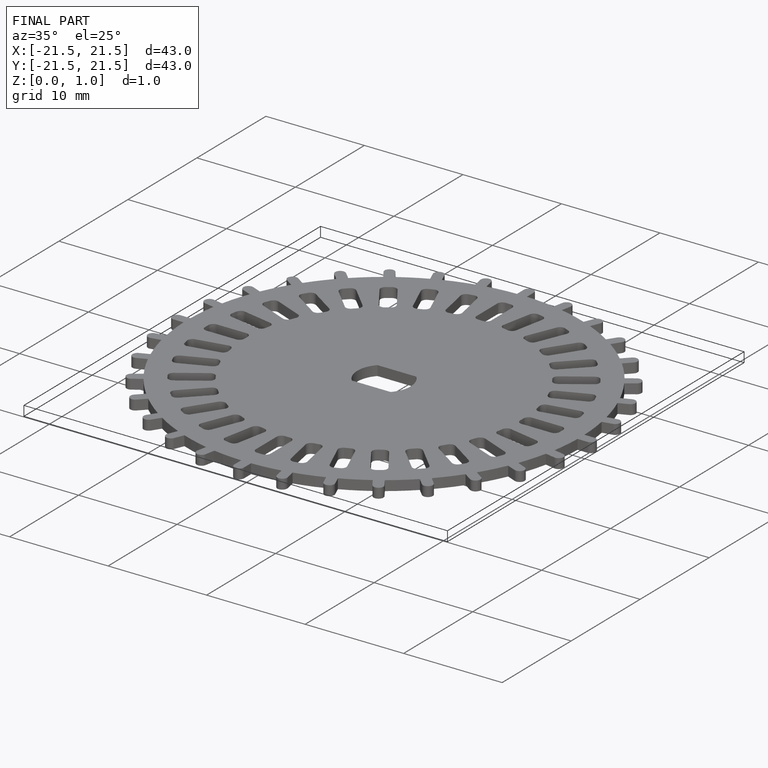
[diagram: finished part — iso view with bounding-box wireframe]
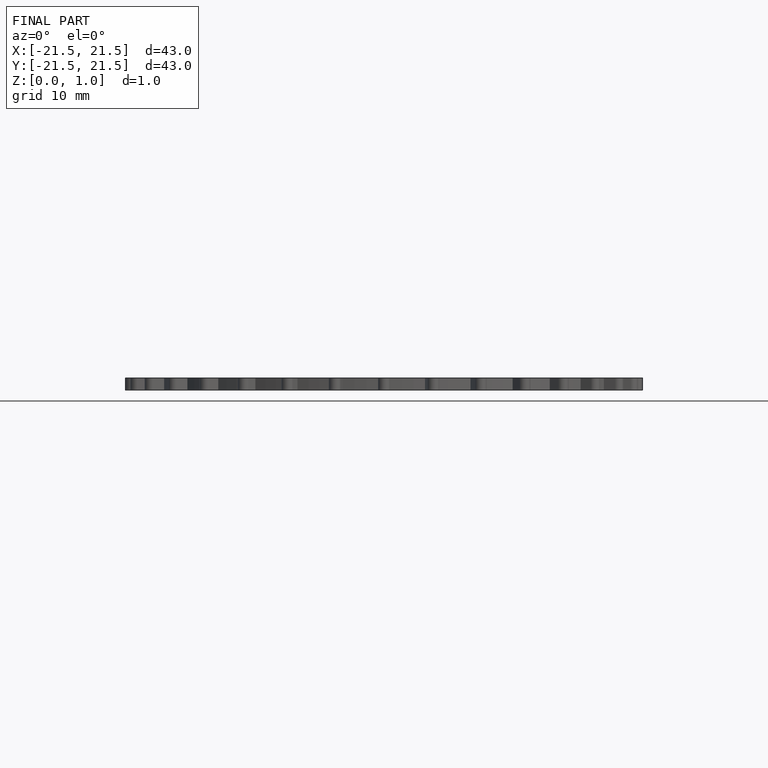
[diagram: finished part — front view with bounding-box wireframe]
